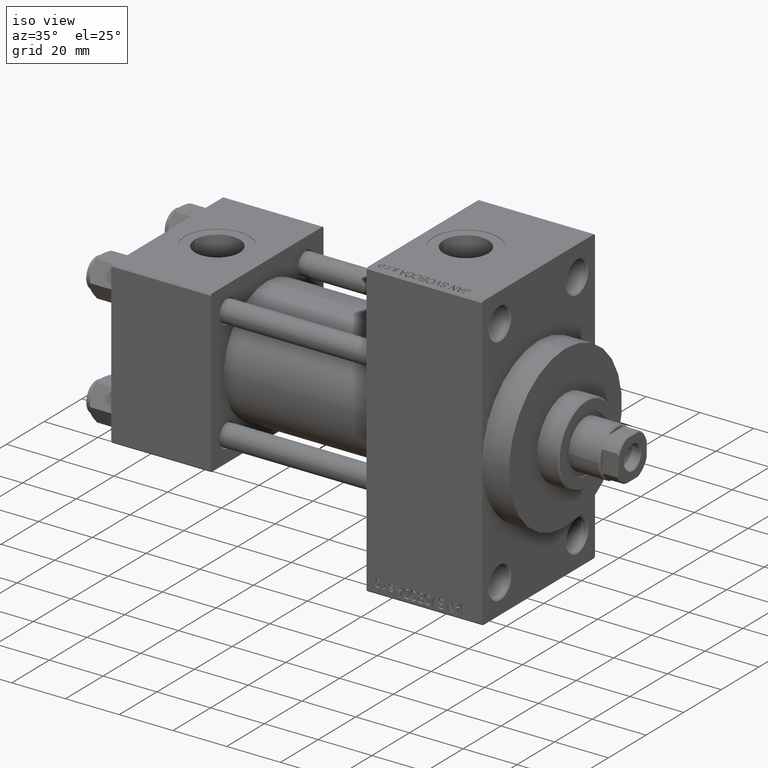
[diagram: clean part render]
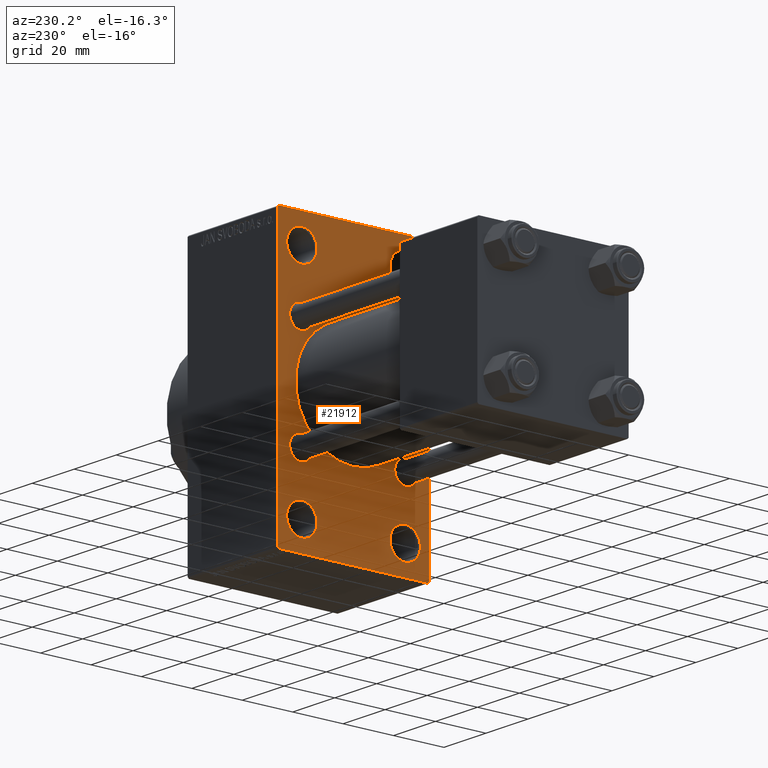
[diagram: tour spotlight — one face highlighted and labeled with its STEP entity id]
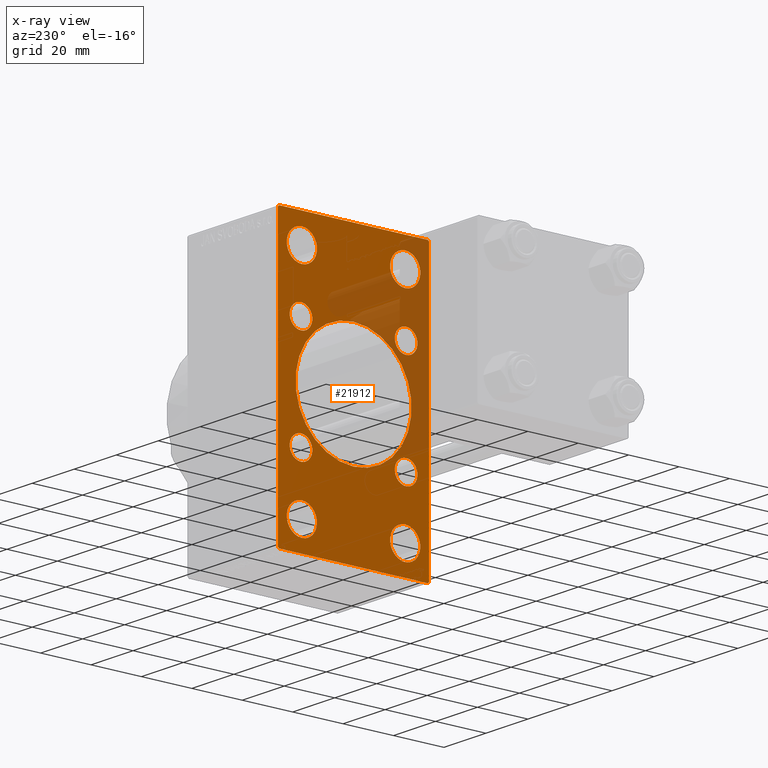
[diagram: x-ray of the same camera — body ghosted, this tour face saturated]
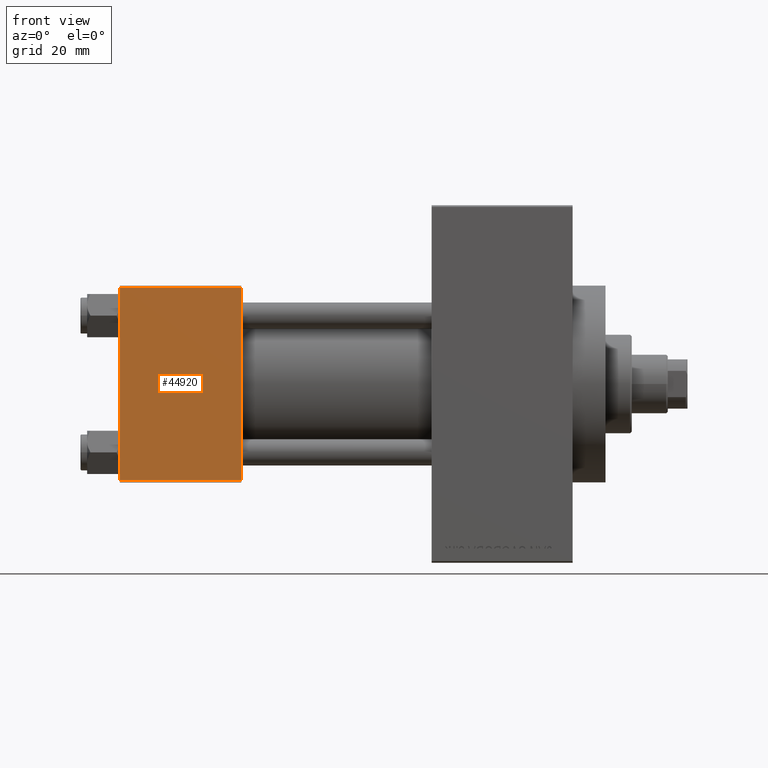
[diagram: tour spotlight — one face highlighted and labeled with its STEP entity id]
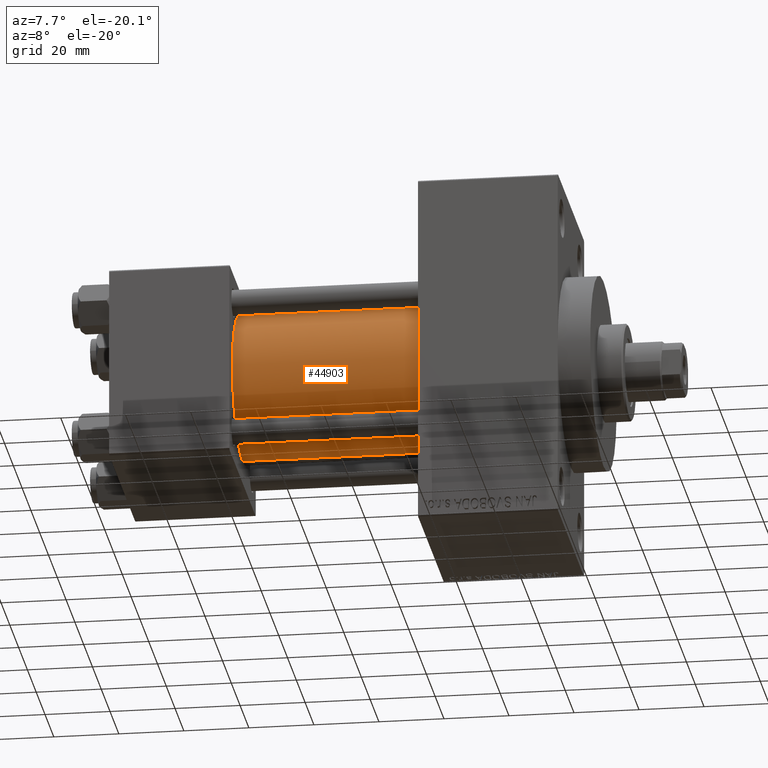
[diagram: tour spotlight — one face highlighted and labeled with its STEP entity id]
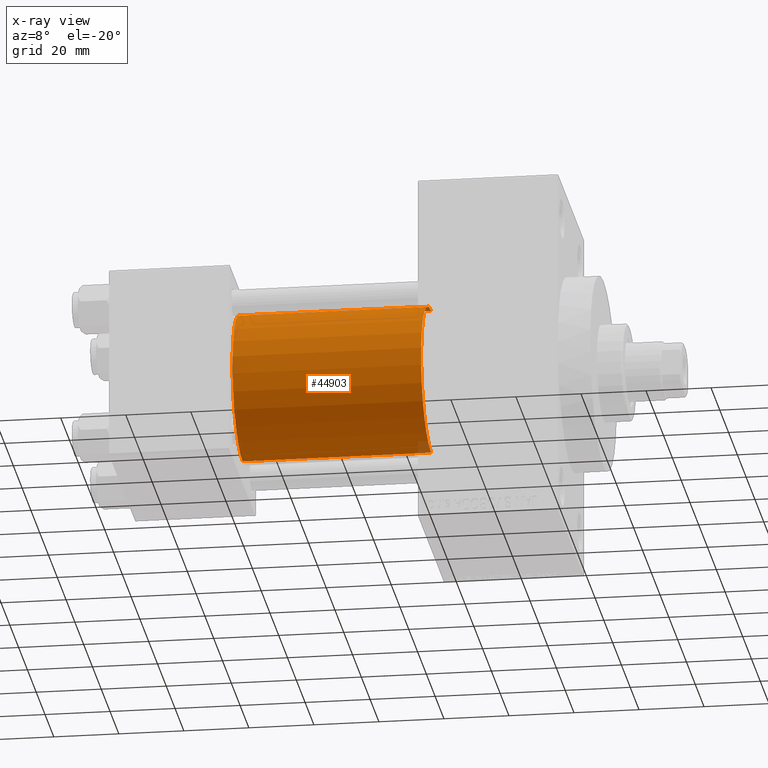
[diagram: x-ray of the same camera — body ghosted, this tour face saturated]
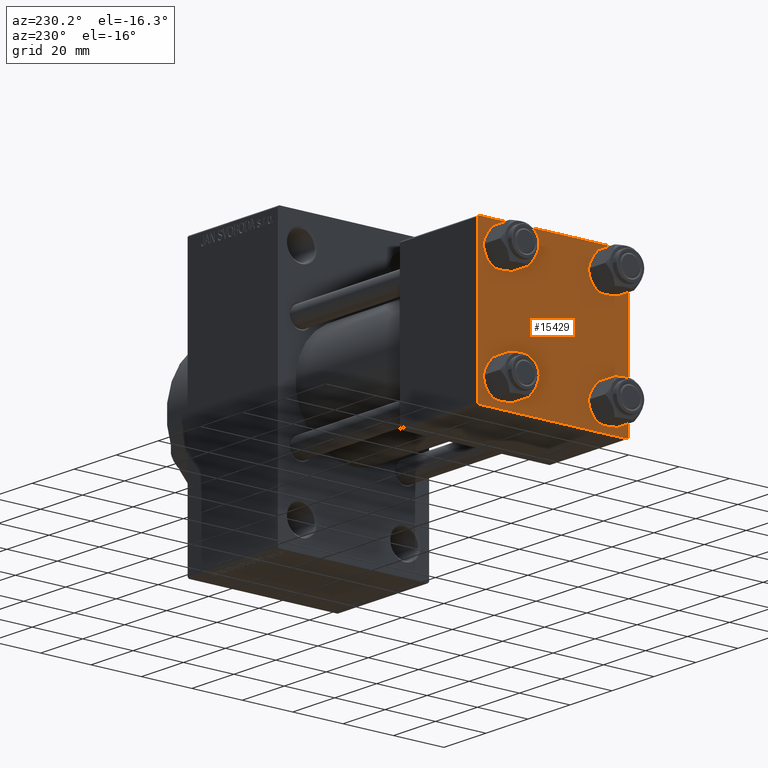
[diagram: tour spotlight — one face highlighted and labeled with its STEP entity id]
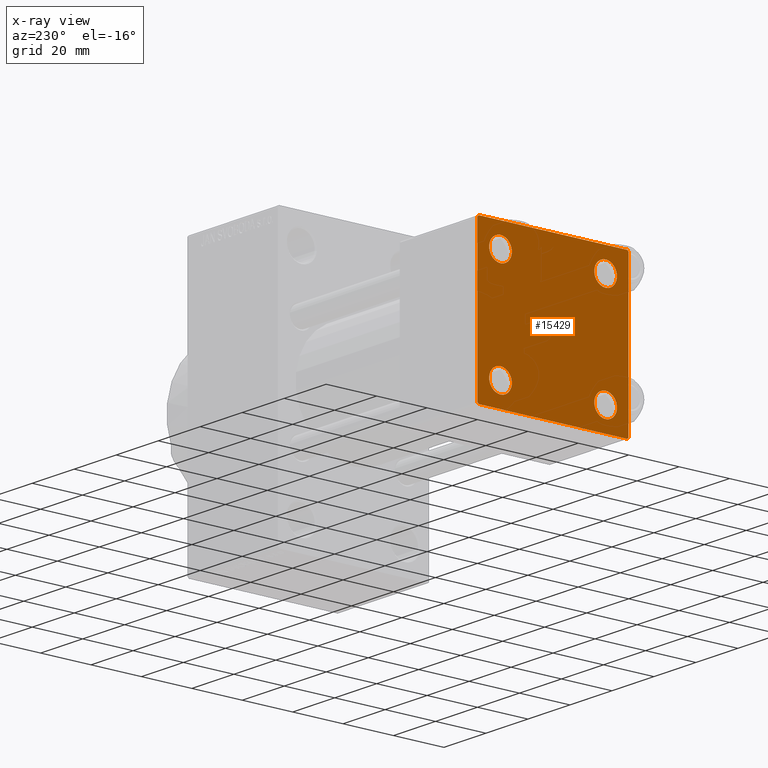
[diagram: x-ray of the same camera — body ghosted, this tour face saturated]
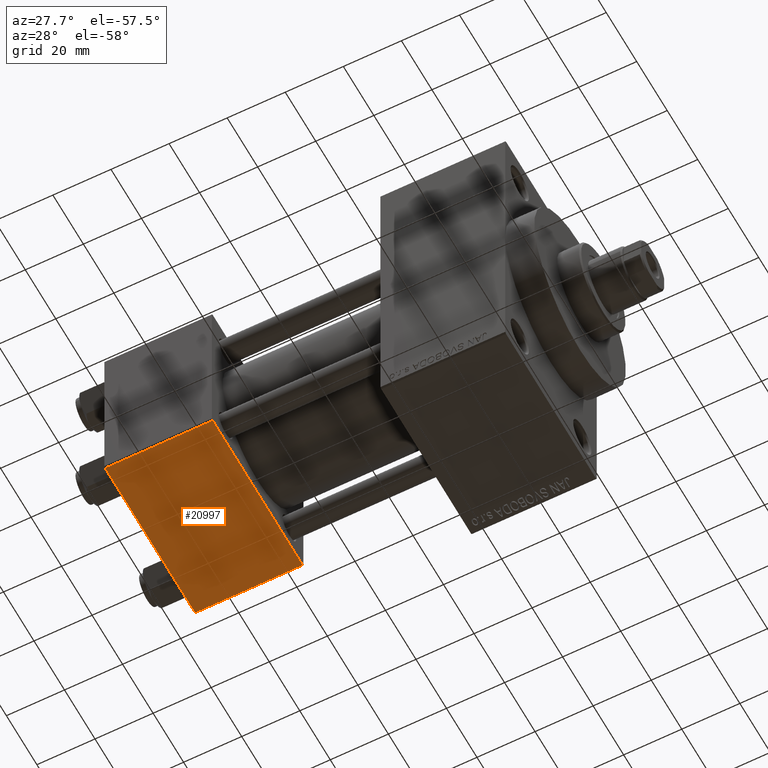
[diagram: tour spotlight — one face highlighted and labeled with its STEP entity id]
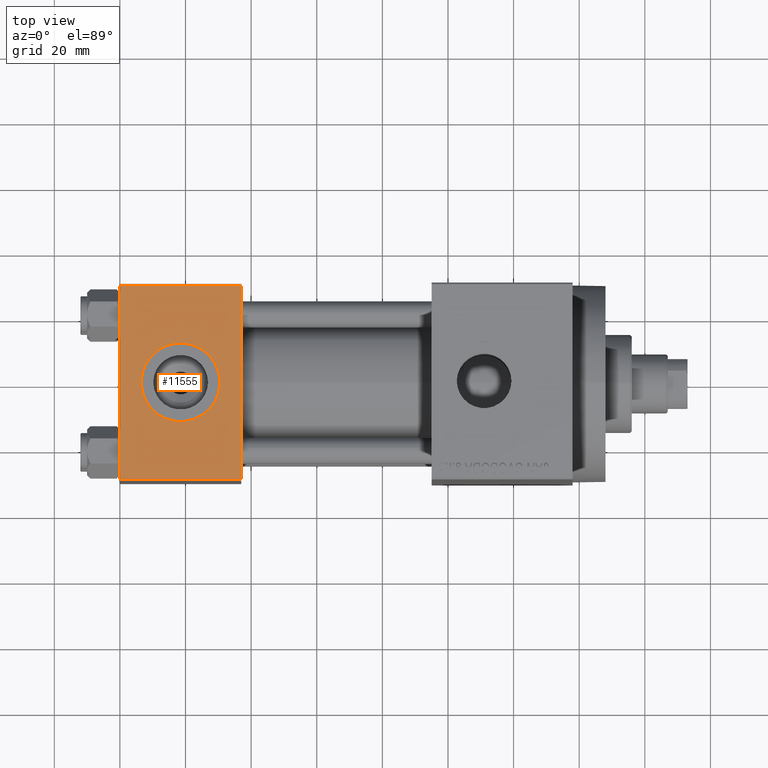
[diagram: tour spotlight — one face highlighted and labeled with its STEP entity id]
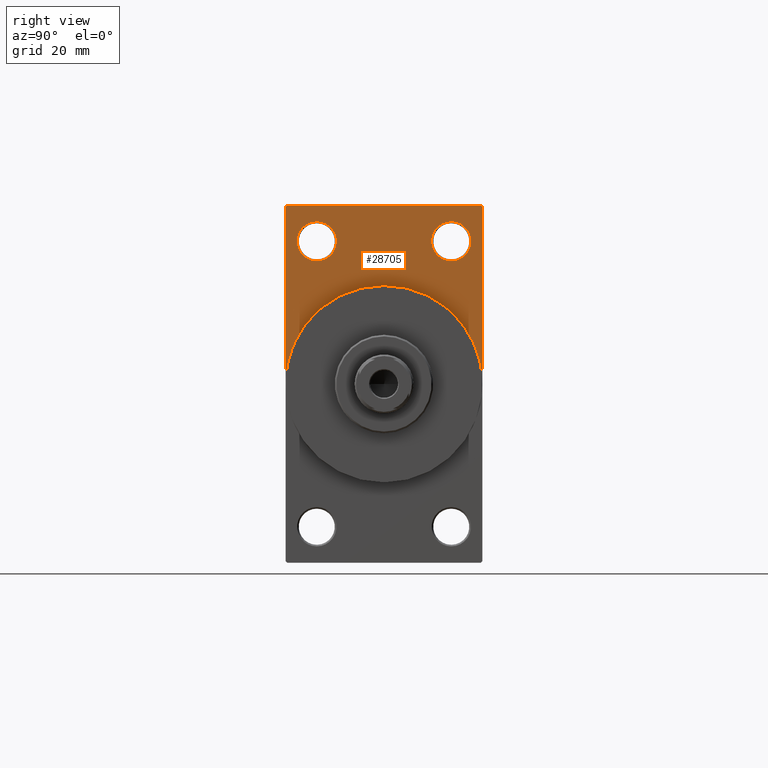
[diagram: tour spotlight — one face highlighted and labeled with its STEP entity id]
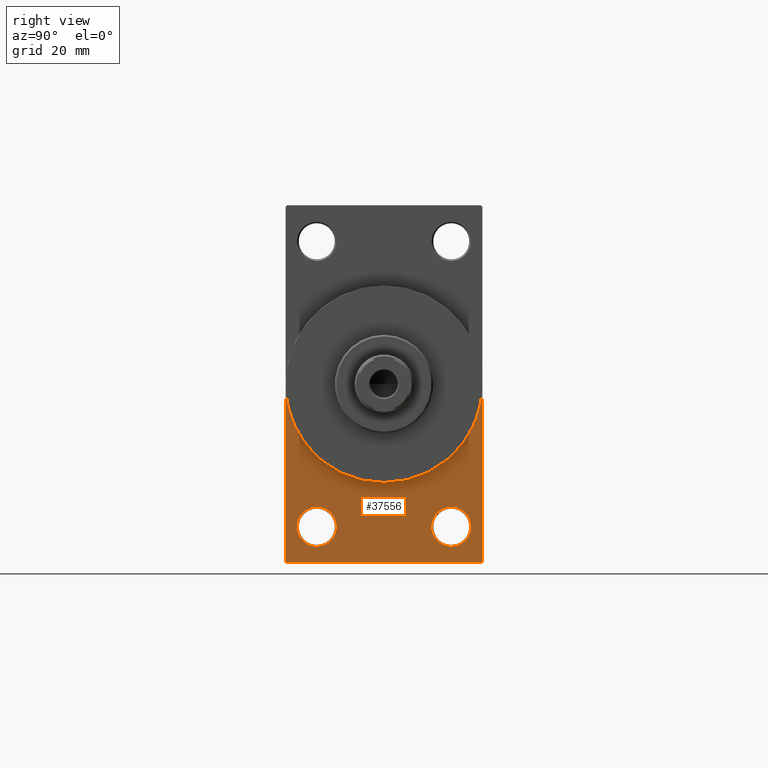
[diagram: tour spotlight — one face highlighted and labeled with its STEP entity id]
A machine part: a face-by-face anatomy tour. The part has 1104 B-rep faces; the first image is the clean iso view, then the 8 largest visible faces are spotlighted one at a time (largest first), each with its STEP entity span.

Face 1 — auxiliary view, entity #21912. An x-ray twin of the same camera follows (body ghosted, this face saturated) — the face is partly hidden behind the body. In plain terms, the highlighted planar face has unit normal (-1, 0, 0).
Definition (entity closure, byte-faithful):
#82 = EDGE_CURVE ( 'NONE', #32374, #4979, #40781, .T. ) ;
#112 = EDGE_LOOP ( 'NONE', ( #2901, #24814 ) ) ;
#114 = CARTESIAN_POINT ( 'NONE',  ( 95.00000000000000000, 20.50000000000000000, -49.49999999999989342 ) ) ;
#347 = CARTESIAN_POINT ( 'NONE',  ( 95.00000000000000000, -20.50000000000000000, -43.50000000000000000 ) ) ;
#637 = DIRECTION ( 'NONE',  ( 0.000000000000000000, 0.000000000000000000, 1.000000000000000000 ) ) ;
#911 = CARTESIAN_POINT ( 'NONE',  ( 95.00000000000000000, -20.50000000000000000, -49.49999999999989342 ) ) ;
#915 = DIRECTION ( 'NONE',  ( 1.000000000000000000, -0.000000000000000000, 0.000000000000000000 ) ) ;
#922 = AXIS2_PLACEMENT_3D ( 'NONE', #27335, #41886, #34729 ) ;
#1071 = EDGE_CURVE ( 'NONE', #17764, #27014, #26806, .T. ) ;
#1195 = CARTESIAN_POINT ( 'NONE',  ( 95.00000000000000000, 2.146024240737012665E-16, -23.00000000000000000 ) ) ;
#1275 = EDGE_CURVE ( 'NONE', #46318, #40634, #22535, .T. ) ;
#1363 = VERTEX_POINT ( 'NONE', #39897 ) ;
#1385 = EDGE_CURVE ( 'NONE', #37969, #4063, #36077, .T. ) ;
#1888 = FACE_BOUND ( 'NONE', #30644, .T. ) ;
#1913 = AXIS2_PLACEMENT_3D ( 'NONE', #10056, #6951, #42769 ) ;
#2142 = AXIS2_PLACEMENT_3D ( 'NONE', #32179, #13541, #10199 ) ;
#2331 = DIRECTION ( 'NONE',  ( 0.000000000000000000, 0.000000000000000000, 1.000000000000000000 ) ) ;
#2470 = DIRECTION ( 'NONE',  ( 0.000000000000000000, 0.000000000000000000, 1.000000000000000000 ) ) ;
#2473 = CARTESIAN_POINT ( 'NONE',  ( 95.00000000000000000, -29.49999999999997513, 54.50000000000000000 ) ) ;
#2890 = CARTESIAN_POINT ( 'NONE',  ( 95.00000000000000000, -42.00000000000051159, -41.99999999999905498 ) ) ;
#2901 = ORIENTED_EDGE ( 'NONE', *, *, #19305, .T. ) ;
#2943 = DIRECTION ( 'NONE',  ( 1.000000000000000000, -0.000000000000000000, 0.000000000000000000 ) ) ;
#3084 = VERTEX_POINT ( 'NONE', #9409 ) ;
#3657 = AXIS2_PLACEMENT_3D ( 'NONE', #36120, #46880, #9865 ) ;
#4063 = VERTEX_POINT ( 'NONE', #14879 ) ;
#4129 = EDGE_CURVE ( 'NONE', #39865, #46572, #30242, .T. ) ;
#4548 = LINE ( 'NONE', #30313, #41825 ) ;
#4679 = CIRCLE ( 'NONE', #42811, 23.00000000000000000 ) ;
#4824 = DIRECTION ( 'NONE',  ( 1.000000000000000000, -0.000000000000000000, 0.000000000000000000 ) ) ;
#4979 = VERTEX_POINT ( 'NONE', #30861 ) ;
#5008 = FACE_BOUND ( 'NONE', #112, .T. ) ;
#6521 = CARTESIAN_POINT ( 'NONE',  ( 95.00000000000000000, -20.84999999999999076, 20.85000000000000497 ) ) ;
#6951 = DIRECTION ( 'NONE',  ( 1.000000000000000000, -0.000000000000000000, 0.000000000000000000 ) ) ;
#7135 = EDGE_LOOP ( 'NONE', ( #18729, #34995 ) ) ;
#8357 = FACE_BOUND ( 'NONE', #20729, .T. ) ;
#8414 = DIRECTION ( 'NONE',  ( 0.000000000000000000, -1.000000000000000000, 1.156482317317871478E-16 ) ) ;
#8442 = EDGE_CURVE ( 'NONE', #32508, #3084, #34203, .T. ) ;
#8583 = CIRCLE ( 'NONE', #35278, 4.500000000000007105 ) ;
#8672 = ORIENTED_EDGE ( 'NONE', *, *, #34175, .T. ) ;
#9340 = CARTESIAN_POINT ( 'NONE',  ( 95.00000000000000000, -20.84999999999999076, -25.35000000000001208 ) ) ;
#9409 = CARTESIAN_POINT ( 'NONE',  ( 95.00000000000000000, -2.602085213965210642E-15, 23.00000000000000000 ) ) ;
#9434 = EDGE_CURVE ( 'NONE', #29660, #10867, #44120, .T. ) ;
#9500 = DIRECTION ( 'NONE',  ( 0.000000000000000000, 0.000000000000000000, 1.000000000000000000 ) ) ;
#9513 = AXIS2_PLACEMENT_3D ( 'NONE', #22747, #4824, #18685 ) ;
#9537 = CIRCLE ( 'NONE', #45361, 5.999999999999894307 ) ;
#9628 = EDGE_CURVE ( 'NONE', #17764, #35280, #4548, .T. ) ;
#9865 = DIRECTION ( 'NONE',  ( 0.000000000000000000, 0.000000000000000000, 1.000000000000000000 ) ) ;
#9913 = EDGE_CURVE ( 'NONE', #10202, #37969, #10227, .T. ) ;
#10056 = CARTESIAN_POINT ( 'NONE',  ( 95.00000000000000000, 20.84999999999999787, -20.85000000000000142 ) ) ;
#10107 = CARTESIAN_POINT ( 'NONE',  ( 95.00000000000000000, -2.602085213965210642E-15, 0.000000000000000000 ) ) ;
#10199 = DIRECTION ( 'NONE',  ( 0.000000000000000000, 0.000000000000000000, 1.000000000000000000 ) ) ;
#10202 = VERTEX_POINT ( 'NONE', #46724 ) ;
#10227 = LINE ( 'NONE', #28865, #18966 ) ;
#10286 = DIRECTION ( 'NONE',  ( 0.000000000000000000, -0.7071067811865352493, 0.7071067811865597852 ) ) ;
#10323 = ORIENTED_EDGE ( 'NONE', *, *, #45373, .F. ) ;
#10570 = DIRECTION ( 'NONE',  ( 1.000000000000000000, 0.000000000000000000, 0.000000000000000000 ) ) ;
#10751 = VERTEX_POINT ( 'NONE', #911 ) ;
#10867 = VERTEX_POINT ( 'NONE', #23580 ) ;
#11928 = DIRECTION ( 'NONE',  ( -0.000000000000000000, 0.000000000000000000, 1.000000000000000000 ) ) ;
#11986 = VECTOR ( 'NONE', #41493, 1000.000000000000114 ) ;
#12467 = DIRECTION ( 'NONE',  ( -0.000000000000000000, 0.7071067811865451302, 0.7071067811865500152 ) ) ;
#12880 = CIRCLE ( 'NONE', #43401, 5.999999999999894307 ) ;
#12925 = DIRECTION ( 'NONE',  ( 1.000000000000000000, -0.000000000000000000, 0.000000000000000000 ) ) ;
#12963 = EDGE_LOOP ( 'NONE', ( #38569, #27108 ) ) ;
#13325 = DIRECTION ( 'NONE',  ( 0.000000000000000000, 0.000000000000000000, 1.000000000000000000 ) ) ;
#13433 = CARTESIAN_POINT ( 'NONE',  ( 95.00000000000000000, -2.602085213965210642E-15, 0.000000000000000000 ) ) ;
#13470 = EDGE_CURVE ( 'NONE', #28778, #1363, #12880, .T. ) ;
#13541 = DIRECTION ( 'NONE',  ( 1.000000000000000000, -0.000000000000000000, 0.000000000000000000 ) ) ;
#13619 = AXIS2_PLACEMENT_3D ( 'NONE', #347, #30167, #44270 ) ;
#13636 = CARTESIAN_POINT ( 'NONE',  ( 95.00000000000000000, 20.50000000000000000, -43.50000000000000000 ) ) ;
#14542 = VECTOR ( 'NONE', #12467, 1000.000000000000114 ) ;
#14879 = CARTESIAN_POINT ( 'NONE',  ( 95.00000000000000000, -30.00000000000000000, -53.99999999999998579 ) ) ;
#15645 = VECTOR ( 'NONE', #8414, 1000.000000000000000 ) ;
#15739 = FACE_OUTER_BOUND ( 'NONE', #16078, .T. ) ;
#15812 = LINE ( 'NONE', #41142, #14542 ) ;
#15911 = ORIENTED_EDGE ( 'NONE', *, *, #9628, .T. ) ;
#16078 = EDGE_LOOP ( 'NONE', ( #36446, #29763, #10323, #38807, #40701, #15911, #46445, #8672 ) ) ;
#16411 = LINE ( 'NONE', #38396, #11986 ) ;
#17115 = CARTESIAN_POINT ( 'NONE',  ( 95.00000000000000000, 29.50000000000002132, 54.49999999999999289 ) ) ;
#17764 = VERTEX_POINT ( 'NONE', #17115 ) ;
#17780 = VERTEX_POINT ( 'NONE', #31698 ) ;
#18453 = CARTESIAN_POINT ( 'NONE',  ( 95.00000000000000000, -20.50000000000000000, 37.50000000000009948 ) ) ;
#18685 = DIRECTION ( 'NONE',  ( 0.000000000000000000, 0.000000000000000000, 1.000000000000000000 ) ) ;
#18729 = ORIENTED_EDGE ( 'NONE', *, *, #82, .T. ) ;
#18966 = VECTOR ( 'NONE', #43420, 1000.000000000000000 ) ;
#19191 = ORIENTED_EDGE ( 'NONE', *, *, #36430, .T. ) ;
#19200 = ORIENTED_EDGE ( 'NONE', *, *, #23541, .T. ) ;
#19305 = EDGE_CURVE ( 'NONE', #3084, #32508, #4679, .T. ) ;
#19395 = DIRECTION ( 'NONE',  ( 1.000000000000000000, -0.000000000000000000, 0.000000000000000000 ) ) ;
#19803 = FACE_BOUND ( 'NONE', #33989, .T. ) ;
#20622 = DIRECTION ( 'NONE',  ( 1.000000000000000000, 0.000000000000000000, 0.000000000000000000 ) ) ;
#20729 = EDGE_LOOP ( 'NONE', ( #19191, #25142 ) ) ;
#20943 = CARTESIAN_POINT ( 'NONE',  ( 95.00000000000000000, 20.50000000000000000, 43.50000000000000000 ) ) ;
#21912 = ADVANCED_FACE ( 'NONE', ( #1888, #8357, #30555, #22699, #19803, #37713, #38185, #41297, #5008, #15739 ), #45119, .T. ) ;
#22329 = AXIS2_PLACEMENT_3D ( 'NONE', #6521, #2943, #2470 ) ;
#22395 = EDGE_CURVE ( 'NONE', #25249, #45447, #42879, .T. ) ;
#22535 = CIRCLE ( 'NONE', #1913, 4.500000000000007105 ) ;
#22539 = DIRECTION ( 'NONE',  ( 0.000000000000000000, 0.000000000000000000, 1.000000000000000000 ) ) ;
#22699 = FACE_BOUND ( 'NONE', #12963, .T. ) ;
#22747 = CARTESIAN_POINT ( 'NONE',  ( 95.00000000000000000, 20.84999999999999787, 20.85000000000000142 ) ) ;
#23048 = CIRCLE ( 'NONE', #922, 5.999999999999894307 ) ;
#23141 = EDGE_CURVE ( 'NONE', #35699, #38801, #8583, .T. ) ;
#23217 = CARTESIAN_POINT ( 'NONE',  ( 95.00000000000000000, 29.99999999999999645, 54.49999999999999289 ) ) ;
#23541 = EDGE_CURVE ( 'NONE', #38801, #35699, #36036, .T. ) ;
#23580 = CARTESIAN_POINT ( 'NONE',  ( 95.00000000000000000, 20.50000000000000000, -37.50000000000009948 ) ) ;
#23710 = CARTESIAN_POINT ( 'NONE',  ( 95.00000000000000000, 20.50000000000000000, 37.50000000000009948 ) ) ;
#23724 = CARTESIAN_POINT ( 'NONE',  ( 95.00000000000000000, 20.50000000000000000, 43.50000000000000000 ) ) ;
#23847 = CARTESIAN_POINT ( 'NONE',  ( 95.00000000000000000, 20.84999999999999787, 20.85000000000000142 ) ) ;
#23925 = DIRECTION ( 'NONE',  ( 0.000000000000000000, 0.000000000000000000, 1.000000000000000000 ) ) ;
#23957 = LINE ( 'NONE', #25153, #38548 ) ;
#24239 = CIRCLE ( 'NONE', #3657, 4.500000000000007105 ) ;
#24274 = CIRCLE ( 'NONE', #2142, 5.999999999999894307 ) ;
#24309 = CIRCLE ( 'NONE', #13619, 5.999999999999894307 ) ;
#24435 = ORIENTED_EDGE ( 'NONE', *, *, #29319, .T. ) ;
#24687 = DIRECTION ( 'NONE',  ( 0.000000000000000000, 0.000000000000000000, -1.000000000000000000 ) ) ;
#24814 = ORIENTED_EDGE ( 'NONE', *, *, #8442, .T. ) ;
#25142 = ORIENTED_EDGE ( 'NONE', *, *, #41666, .T. ) ;
#25147 = EDGE_CURVE ( 'NONE', #10867, #29660, #23048, .T. ) ;
#25153 = CARTESIAN_POINT ( 'NONE',  ( 95.00000000000000000, 29.99999999999999645, 54.49999999999999289 ) ) ;
#25249 = VERTEX_POINT ( 'NONE', #34408 ) ;
#25406 = CARTESIAN_POINT ( 'NONE',  ( 95.00000000000000000, 29.99999999999999645, -53.99999999999999289 ) ) ;
#25439 = ORIENTED_EDGE ( 'NONE', *, *, #25147, .T. ) ;
#26016 = DIRECTION ( 'NONE',  ( 0.000000000000000000, 0.000000000000000000, 1.000000000000000000 ) ) ;
#26300 = AXIS2_PLACEMENT_3D ( 'NONE', #23847, #30761, #9500 ) ;
#26806 = LINE ( 'NONE', #23217, #15645 ) ;
#26902 = AXIS2_PLACEMENT_3D ( 'NONE', #34360, #34114, #13325 ) ;
#26903 = CARTESIAN_POINT ( 'NONE',  ( 95.00000000000000000, -29.50000000000000355, -54.50000000000000000 ) ) ;
#27014 = VERTEX_POINT ( 'NONE', #2473 ) ;
#27054 = VERTEX_POINT ( 'NONE', #25406 ) ;
#27108 = ORIENTED_EDGE ( 'NONE', *, *, #13470, .T. ) ;
#27335 = CARTESIAN_POINT ( 'NONE',  ( 95.00000000000000000, 20.50000000000000000, -43.50000000000000000 ) ) ;
#27595 = VERTEX_POINT ( 'NONE', #29508 ) ;
#28227 = CARTESIAN_POINT ( 'NONE',  ( 95.00000000000000000, 20.84999999999999787, 25.35000000000000853 ) ) ;
#28353 = EDGE_CURVE ( 'NONE', #4979, #32374, #30099, .T. ) ;
#28778 = VERTEX_POINT ( 'NONE', #23710 ) ;
#28865 = CARTESIAN_POINT ( 'NONE',  ( 95.00000000000000000, 29.99999999999999645, -54.49999999999999289 ) ) ;
#29319 = EDGE_CURVE ( 'NONE', #46572, #39865, #9537, .T. ) ;
#29508 = CARTESIAN_POINT ( 'NONE',  ( 95.00000000000000000, -30.00000000000000000, 53.99999999999997158 ) ) ;
#29660 = VERTEX_POINT ( 'NONE', #114 ) ;
#29763 = ORIENTED_EDGE ( 'NONE', *, *, #1385, .T. ) ;
#30099 = CIRCLE ( 'NONE', #26300, 4.500000000000007105 ) ;
#30167 = DIRECTION ( 'NONE',  ( 1.000000000000000000, -0.000000000000000000, 0.000000000000000000 ) ) ;
#30242 = CIRCLE ( 'NONE', #34058, 5.999999999999894307 ) ;
#30313 = CARTESIAN_POINT ( 'NONE',  ( 95.00000000000000000, 42.00000000000082423, 41.99999999999849365 ) ) ;
#30384 = CARTESIAN_POINT ( 'NONE',  ( 95.00000000000000000, -20.50000000000000000, 43.50000000000000000 ) ) ;
#30555 = FACE_BOUND ( 'NONE', #40300, .T. ) ;
#30644 = EDGE_LOOP ( 'NONE', ( #24435, #44672 ) ) ;
#30656 = EDGE_CURVE ( 'NONE', #35280, #27054, #23957, .T. ) ;
#30688 = ORIENTED_EDGE ( 'NONE', *, *, #23141, .T. ) ;
#30761 = DIRECTION ( 'NONE',  ( 1.000000000000000000, -0.000000000000000000, 0.000000000000000000 ) ) ;
#30861 = CARTESIAN_POINT ( 'NONE',  ( 95.00000000000000000, 20.84999999999999787, 16.34999999999999432 ) ) ;
#31064 = DIRECTION ( 'NONE',  ( 0.000000000000000000, 0.000000000000000000, 1.000000000000000000 ) ) ;
#31360 = DIRECTION ( 'NONE',  ( 1.000000000000000000, -0.000000000000000000, 0.000000000000000000 ) ) ;
#31698 = CARTESIAN_POINT ( 'NONE',  ( 95.00000000000000000, -20.50000000000000000, -37.50000000000009948 ) ) ;
#32179 = CARTESIAN_POINT ( 'NONE',  ( 95.00000000000000000, -20.50000000000000000, -43.50000000000000000 ) ) ;
#32374 = VERTEX_POINT ( 'NONE', #28227 ) ;
#32508 = VERTEX_POINT ( 'NONE', #1195 ) ;
#33121 = CARTESIAN_POINT ( 'NONE',  ( 95.00000000000000000, -20.50000000000000000, 43.50000000000000000 ) ) ;
#33641 = CARTESIAN_POINT ( 'NONE',  ( 95.00000000000000000, 20.84999999999999787, -20.85000000000000142 ) ) ;
#33989 = EDGE_LOOP ( 'NONE', ( #46014, #34628 ) ) ;
#34058 = AXIS2_PLACEMENT_3D ( 'NONE', #30384, #19395, #22539 ) ;
#34114 = DIRECTION ( 'NONE',  ( 1.000000000000000000, -0.000000000000000000, 0.000000000000000000 ) ) ;
#34130 = DIRECTION ( 'NONE',  ( 0.000000000000000000, 0.7071067811865279218, -0.7071067811865671127 ) ) ;
#34175 = EDGE_CURVE ( 'NONE', #27054, #10202, #16411, .T. ) ;
#34203 = CIRCLE ( 'NONE', #44863, 23.00000000000000000 ) ;
#34360 = CARTESIAN_POINT ( 'NONE',  ( 95.00000000000000000, -20.84999999999999076, -20.85000000000000497 ) ) ;
#34375 = DIRECTION ( 'NONE',  ( -1.000000000000000000, 0.000000000000000000, -0.000000000000000000 ) ) ;
#34385 = AXIS2_PLACEMENT_3D ( 'NONE', #33641, #915, #26016 ) ;
#34408 = CARTESIAN_POINT ( 'NONE',  ( 95.00000000000000000, -20.84999999999999076, 25.35000000000001208 ) ) ;
#34499 = CARTESIAN_POINT ( 'NONE',  ( 95.00000000000000000, -20.84999999999999076, 16.34999999999999787 ) ) ;
#34569 = DIRECTION ( 'NONE',  ( 1.000000000000000000, -0.000000000000000000, 0.000000000000000000 ) ) ;
#34628 = ORIENTED_EDGE ( 'NONE', *, *, #35568, .T. ) ;
#34729 = DIRECTION ( 'NONE',  ( 0.000000000000000000, 0.000000000000000000, 1.000000000000000000 ) ) ;
#34932 = DIRECTION ( 'NONE',  ( 0.000000000000000000, 0.000000000000000000, 1.000000000000000000 ) ) ;
#34995 = ORIENTED_EDGE ( 'NONE', *, *, #28353, .T. ) ;
#35278 = AXIS2_PLACEMENT_3D ( 'NONE', #45388, #45633, #31064 ) ;
#35280 = VERTEX_POINT ( 'NONE', #38578 ) ;
#35568 = EDGE_CURVE ( 'NONE', #45447, #25249, #24239, .T. ) ;
#35699 = VERTEX_POINT ( 'NONE', #9340 ) ;
#35796 = CARTESIAN_POINT ( 'NONE',  ( 95.00000000000000000, 20.84999999999999787, -25.35000000000000853 ) ) ;
#36036 = CIRCLE ( 'NONE', #26902, 4.500000000000007105 ) ;
#36077 = LINE ( 'NONE', #2890, #45414 ) ;
#36120 = CARTESIAN_POINT ( 'NONE',  ( 95.00000000000000000, -20.84999999999999076, 20.85000000000000497 ) ) ;
#36430 = EDGE_CURVE ( 'NONE', #17780, #10751, #24274, .T. ) ;
#36446 = ORIENTED_EDGE ( 'NONE', *, *, #9913, .T. ) ;
#37713 = FACE_BOUND ( 'NONE', #7135, .T. ) ;
#37969 = VERTEX_POINT ( 'NONE', #26903 ) ;
#38185 = FACE_BOUND ( 'NONE', #45496, .T. ) ;
#38195 = CIRCLE ( 'NONE', #34385, 4.500000000000007105 ) ;
#38396 = CARTESIAN_POINT ( 'NONE',  ( 95.00000000000000000, 41.99999999999998579, -41.99999999999998579 ) ) ;
#38548 = VECTOR ( 'NONE', #43745, 1000.000000000000000 ) ;
#38569 = ORIENTED_EDGE ( 'NONE', *, *, #43578, .T. ) ;
#38578 = CARTESIAN_POINT ( 'NONE',  ( 95.00000000000000000, 29.99999999999999645, 53.99999999999999289 ) ) ;
#38689 = AXIS2_PLACEMENT_3D ( 'NONE', #13636, #12925, #23925 ) ;
#38801 = VERTEX_POINT ( 'NONE', #40338 ) ;
#38807 = ORIENTED_EDGE ( 'NONE', *, *, #46764, .T. ) ;
#39786 = DIRECTION ( 'NONE',  ( 0.000000000000000000, 0.000000000000000000, -1.000000000000000000 ) ) ;
#39865 = VERTEX_POINT ( 'NONE', #18453 ) ;
#39897 = CARTESIAN_POINT ( 'NONE',  ( 95.00000000000000000, 20.50000000000000000, 49.49999999999989342 ) ) ;
#40300 = EDGE_LOOP ( 'NONE', ( #25439, #41851 ) ) ;
#40338 = CARTESIAN_POINT ( 'NONE',  ( 95.00000000000000000, -20.84999999999999076, -16.34999999999999787 ) ) ;
#40404 = AXIS2_PLACEMENT_3D ( 'NONE', #23724, #31360, #34932 ) ;
#40634 = VERTEX_POINT ( 'NONE', #44759 ) ;
#40701 = ORIENTED_EDGE ( 'NONE', *, *, #1071, .F. ) ;
#40747 = DIRECTION ( 'NONE',  ( 1.000000000000000000, -0.000000000000000000, 0.000000000000000000 ) ) ;
#40781 = CIRCLE ( 'NONE', #9513, 4.500000000000007105 ) ;
#41142 = CARTESIAN_POINT ( 'NONE',  ( 95.00000000000000000, -42.00000000000008527, 41.99999999999979394 ) ) ;
#41197 = EDGE_LOOP ( 'NONE', ( #19200, #30688 ) ) ;
#41297 = FACE_BOUND ( 'NONE', #41197, .T. ) ;
#41493 = DIRECTION ( 'NONE',  ( -0.000000000000000000, -0.7071067811865474617, -0.7071067811865474617 ) ) ;
#41666 = EDGE_CURVE ( 'NONE', #10751, #17780, #24309, .T. ) ;
#41825 = VECTOR ( 'NONE', #34130, 1000.000000000000000 ) ;
#41851 = ORIENTED_EDGE ( 'NONE', *, *, #9434, .T. ) ;
#41886 = DIRECTION ( 'NONE',  ( 1.000000000000000000, -0.000000000000000000, 0.000000000000000000 ) ) ;
#42769 = DIRECTION ( 'NONE',  ( 0.000000000000000000, 0.000000000000000000, 1.000000000000000000 ) ) ;
#42811 = AXIS2_PLACEMENT_3D ( 'NONE', #13433, #10570, #46873 ) ;
#42879 = CIRCLE ( 'NONE', #22329, 4.500000000000007105 ) ;
#43401 = AXIS2_PLACEMENT_3D ( 'NONE', #20943, #34569, #2331 ) ;
#43420 = DIRECTION ( 'NONE',  ( 0.000000000000000000, -1.000000000000000000, -1.156482317317871478E-16 ) ) ;
#43451 = ORIENTED_EDGE ( 'NONE', *, *, #46488, .T. ) ;
#43490 = VECTOR ( 'NONE', #39786, 1000.000000000000000 ) ;
#43578 = EDGE_CURVE ( 'NONE', #1363, #28778, #47251, .T. ) ;
#43745 = DIRECTION ( 'NONE',  ( 0.000000000000000000, 0.000000000000000000, -1.000000000000000000 ) ) ;
#44073 = CARTESIAN_POINT ( 'NONE',  ( 95.00000000000000000, -30.00000000000000000, 54.50000000000000000 ) ) ;
#44120 = CIRCLE ( 'NONE', #38689, 5.999999999999894307 ) ;
#44270 = DIRECTION ( 'NONE',  ( 0.000000000000000000, 0.000000000000000000, 1.000000000000000000 ) ) ;
#44548 = LINE ( 'NONE', #44073, #43490 ) ;
#44653 = CARTESIAN_POINT ( 'NONE',  ( 95.00000000000000000, 0.000000000000000000, 0.000000000000000000 ) ) ;
#44672 = ORIENTED_EDGE ( 'NONE', *, *, #4129, .T. ) ;
#44759 = CARTESIAN_POINT ( 'NONE',  ( 95.00000000000000000, 20.84999999999999787, -16.34999999999999432 ) ) ;
#44863 = AXIS2_PLACEMENT_3D ( 'NONE', #10107, #20622, #24687 ) ;
#45119 = PLANE ( 'NONE',  #46713 ) ;
#45267 = ORIENTED_EDGE ( 'NONE', *, *, #1275, .T. ) ;
#45361 = AXIS2_PLACEMENT_3D ( 'NONE', #33121, #40747, #637 ) ;
#45373 = EDGE_CURVE ( 'NONE', #27595, #4063, #44548, .T. ) ;
#45388 = CARTESIAN_POINT ( 'NONE',  ( 95.00000000000000000, -20.84999999999999076, -20.85000000000000497 ) ) ;
#45414 = VECTOR ( 'NONE', #10286, 1000.000000000000000 ) ;
#45447 = VERTEX_POINT ( 'NONE', #34499 ) ;
#45496 = EDGE_LOOP ( 'NONE', ( #43451, #45267 ) ) ;
#45538 = CARTESIAN_POINT ( 'NONE',  ( 95.00000000000000000, -20.50000000000000000, 49.49999999999989342 ) ) ;
#45633 = DIRECTION ( 'NONE',  ( 1.000000000000000000, -0.000000000000000000, 0.000000000000000000 ) ) ;
#46014 = ORIENTED_EDGE ( 'NONE', *, *, #22395, .T. ) ;
#46318 = VERTEX_POINT ( 'NONE', #35796 ) ;
#46445 = ORIENTED_EDGE ( 'NONE', *, *, #30656, .T. ) ;
#46488 = EDGE_CURVE ( 'NONE', #40634, #46318, #38195, .T. ) ;
#46572 = VERTEX_POINT ( 'NONE', #45538 ) ;
#46713 = AXIS2_PLACEMENT_3D ( 'NONE', #44653, #34375, #11928 ) ;
#46724 = CARTESIAN_POINT ( 'NONE',  ( 95.00000000000000000, 29.49999999999999645, -54.49999999999999289 ) ) ;
#46764 = EDGE_CURVE ( 'NONE', #27595, #27014, #15812, .T. ) ;
#46873 = DIRECTION ( 'NONE',  ( 0.000000000000000000, 0.000000000000000000, -1.000000000000000000 ) ) ;
#46880 = DIRECTION ( 'NONE',  ( 1.000000000000000000, -0.000000000000000000, 0.000000000000000000 ) ) ;
#47251 = CIRCLE ( 'NONE', #40404, 5.999999999999894307 ) ;

Face 2 — front view, entity #44920. In plain terms, the highlighted planar face has unit normal (0, 1, 0).
Definition (entity closure, byte-faithful):
#1092 = LINE ( 'NONE', #40749, #7558 ) ;
#2371 = ORIENTED_EDGE ( 'NONE', *, *, #16849, .T. ) ;
#2572 = CARTESIAN_POINT ( 'NONE',  ( 0.000000000000000000, -30.00000000000000000, -29.50000000000001776 ) ) ;
#3739 = DIRECTION ( 'NONE',  ( 0.000000000000000000, 0.000000000000000000, -1.000000000000000000 ) ) ;
#5543 = DIRECTION ( 'NONE',  ( -0.000000000000000000, 1.000000000000000000, 0.000000000000000000 ) ) ;
#6855 = AXIS2_PLACEMENT_3D ( 'NONE', #39187, #5543, #9356 ) ;
#7558 = VECTOR ( 'NONE', #37161, 1000.000000000000000 ) ;
#9356 = DIRECTION ( 'NONE',  ( 0.000000000000000000, -0.000000000000000000, 1.000000000000000000 ) ) ;
#9708 = LINE ( 'NONE', #20930, #14516 ) ;
#9729 = VERTEX_POINT ( 'NONE', #20751 ) ;
#11910 = EDGE_CURVE ( 'NONE', #36710, #43384, #24415, .T. ) ;
#13702 = EDGE_CURVE ( 'NONE', #43384, #9729, #1092, .T. ) ;
#14516 = VECTOR ( 'NONE', #45532, 1000.000000000000000 ) ;
#15407 = CARTESIAN_POINT ( 'NONE',  ( 37.00000000000000000, -30.00000000000000000, 29.99999999999999289 ) ) ;
#15884 = CARTESIAN_POINT ( 'NONE',  ( 0.000000000000000000, -30.00000000000000000, 29.49999999999999289 ) ) ;
#16743 = PLANE ( 'NONE',  #6855 ) ;
#16849 = EDGE_CURVE ( 'NONE', #47086, #36710, #9708, .T. ) ;
#20751 = CARTESIAN_POINT ( 'NONE',  ( 37.00000000000000000, -30.00000000000000000, -29.50000000000001776 ) ) ;
#20930 = CARTESIAN_POINT ( 'NONE',  ( 37.00000000000000000, -30.00000000000000000, 29.49999999999999289 ) ) ;
#21049 = DIRECTION ( 'NONE',  ( 0.000000000000000000, 0.000000000000000000, -1.000000000000000000 ) ) ;
#24415 = LINE ( 'NONE', #35149, #34153 ) ;
#24639 = FACE_OUTER_BOUND ( 'NONE', #30272, .T. ) ;
#30272 = EDGE_LOOP ( 'NONE', ( #42925, #38399, #41846, #2371 ) ) ;
#34153 = VECTOR ( 'NONE', #21049, 1000.000000000000000 ) ;
#35149 = CARTESIAN_POINT ( 'NONE',  ( 0.000000000000000000, -30.00000000000000000, 29.99999999999999289 ) ) ;
#36710 = VERTEX_POINT ( 'NONE', #15884 ) ;
#37161 = DIRECTION ( 'NONE',  ( 1.000000000000000000, 0.000000000000000000, 0.000000000000000000 ) ) ;
#38399 = ORIENTED_EDGE ( 'NONE', *, *, #13702, .T. ) ;
#38914 = CARTESIAN_POINT ( 'NONE',  ( 37.00000000000000000, -30.00000000000000000, 29.49999999999999289 ) ) ;
#39073 = LINE ( 'NONE', #15407, #42732 ) ;
#39187 = CARTESIAN_POINT ( 'NONE',  ( 37.00000000000000000, -30.00000000000000000, 29.99999999999999289 ) ) ;
#40749 = CARTESIAN_POINT ( 'NONE',  ( 37.00000000000000000, -30.00000000000000000, -29.50000000000001776 ) ) ;
#41846 = ORIENTED_EDGE ( 'NONE', *, *, #45339, .F. ) ;
#42732 = VECTOR ( 'NONE', #3739, 1000.000000000000000 ) ;
#42925 = ORIENTED_EDGE ( 'NONE', *, *, #11910, .T. ) ;
#43384 = VERTEX_POINT ( 'NONE', #2572 ) ;
#44920 = ADVANCED_FACE ( 'NONE', ( #24639 ), #16743, .F. ) ;
#45339 = EDGE_CURVE ( 'NONE', #47086, #9729, #39073, .T. ) ;
#45532 = DIRECTION ( 'NONE',  ( -1.000000000000000000, 0.000000000000000000, 0.000000000000000000 ) ) ;
#47086 = VERTEX_POINT ( 'NONE', #38914 ) ;

Face 3 — auxiliary view, entity #44903. An x-ray twin of the same camera follows (body ghosted, this face saturated) — the face is partly hidden behind the body. In plain terms, the highlighted cylindrical surface (partial cylindrical patch) has radius 23 mm, axis along (-1, -0, -0).
Definition (entity closure, byte-faithful):
#378 = DIRECTION ( 'NONE',  ( -1.000000000000000000, -0.000000000000000000, -0.000000000000000000 ) ) ;
#1195 = CARTESIAN_POINT ( 'NONE',  ( 95.00000000000000000, 2.146024240737012665E-16, -23.00000000000000000 ) ) ;
#3084 = VERTEX_POINT ( 'NONE', #9409 ) ;
#3501 = LINE ( 'NONE', #3988, #37231 ) ;
#3988 = CARTESIAN_POINT ( 'NONE',  ( 95.00000000000000000, -2.602085213965210642E-15, 23.00000000000000000 ) ) ;
#4679 = CIRCLE ( 'NONE', #42811, 23.00000000000000000 ) ;
#6013 = FACE_OUTER_BOUND ( 'NONE', #38209, .T. ) ;
#6247 = CARTESIAN_POINT ( 'NONE',  ( 95.00000000000000000, -2.602085213965210642E-15, 0.000000000000000000 ) ) ;
#8043 = EDGE_CURVE ( 'NONE', #3084, #47113, #3501, .T. ) ;
#8981 = VECTOR ( 'NONE', #378, 1000.000000000000000 ) ;
#9409 = CARTESIAN_POINT ( 'NONE',  ( 95.00000000000000000, -2.602085213965210642E-15, 23.00000000000000000 ) ) ;
#9685 = ORIENTED_EDGE ( 'NONE', *, *, #40600, .F. ) ;
#10570 = DIRECTION ( 'NONE',  ( 1.000000000000000000, 0.000000000000000000, 0.000000000000000000 ) ) ;
#11121 = LINE ( 'NONE', #25702, #8981 ) ;
#13189 = VERTEX_POINT ( 'NONE', #31753 ) ;
#13433 = CARTESIAN_POINT ( 'NONE',  ( 95.00000000000000000, -2.602085213965210642E-15, 0.000000000000000000 ) ) ;
#13935 = DIRECTION ( 'NONE',  ( 1.000000000000000000, -0.000000000000000000, 0.000000000000000000 ) ) ;
#14468 = DIRECTION ( 'NONE',  ( -1.000000000000000000, -0.000000000000000000, -0.000000000000000000 ) ) ;
#14932 = EDGE_CURVE ( 'NONE', #47113, #13189, #44969, .T. ) ;
#16405 = ORIENTED_EDGE ( 'NONE', *, *, #8043, .T. ) ;
#19305 = EDGE_CURVE ( 'NONE', #3084, #32508, #4679, .T. ) ;
#20328 = CYLINDRICAL_SURFACE ( 'NONE', #27438, 23.00000000000000000 ) ;
#22487 = ORIENTED_EDGE ( 'NONE', *, *, #14932, .T. ) ;
#24363 = CARTESIAN_POINT ( 'NONE',  ( 37.00000000000000000, -2.602085213965210642E-15, 23.00000000000000000 ) ) ;
#25702 = CARTESIAN_POINT ( 'NONE',  ( 95.00000000000000000, 2.146024240737012665E-16, -23.00000000000000000 ) ) ;
#27438 = AXIS2_PLACEMENT_3D ( 'NONE', #6247, #38719, #27515 ) ;
#27515 = DIRECTION ( 'NONE',  ( 0.000000000000000000, 0.000000000000000000, 1.000000000000000000 ) ) ;
#28033 = DIRECTION ( 'NONE',  ( 0.000000000000000000, 0.000000000000000000, 1.000000000000000000 ) ) ;
#31142 = CARTESIAN_POINT ( 'NONE',  ( 37.00000000000000000, -2.602085213965210642E-15, 0.000000000000000000 ) ) ;
#31753 = CARTESIAN_POINT ( 'NONE',  ( 37.00000000000000000, 2.146024240737012665E-16, -23.00000000000000000 ) ) ;
#32508 = VERTEX_POINT ( 'NONE', #1195 ) ;
#37231 = VECTOR ( 'NONE', #14468, 1000.000000000000000 ) ;
#38209 = EDGE_LOOP ( 'NONE', ( #9685, #44889, #16405, #22487 ) ) ;
#38719 = DIRECTION ( 'NONE',  ( -1.000000000000000000, -0.000000000000000000, -0.000000000000000000 ) ) ;
#40600 = EDGE_CURVE ( 'NONE', #32508, #13189, #11121, .T. ) ;
#41145 = AXIS2_PLACEMENT_3D ( 'NONE', #31142, #13935, #28033 ) ;
#42811 = AXIS2_PLACEMENT_3D ( 'NONE', #13433, #10570, #46873 ) ;
#44889 = ORIENTED_EDGE ( 'NONE', *, *, #19305, .F. ) ;
#44903 = ADVANCED_FACE ( 'NONE', ( #6013 ), #20328, .T. ) ;
#44969 = CIRCLE ( 'NONE', #41145, 23.00000000000000000 ) ;
#46873 = DIRECTION ( 'NONE',  ( 0.000000000000000000, 0.000000000000000000, -1.000000000000000000 ) ) ;
#47113 = VERTEX_POINT ( 'NONE', #24363 ) ;

Face 4 — auxiliary view, entity #15429. An x-ray twin of the same camera follows (body ghosted, this face saturated) — the face is partly hidden behind the body. In plain terms, the highlighted planar face has unit normal (-1, 0, 0).
Definition (entity closure, byte-faithful):
#418 = EDGE_LOOP ( 'NONE', ( #7922, #25854 ) ) ;
#540 = CARTESIAN_POINT ( 'NONE',  ( 0.000000000000000000, -20.84999999999999076, 16.34999999999998721 ) ) ;
#557 = CARTESIAN_POINT ( 'NONE',  ( 0.000000000000000000, -20.84999999999999076, -20.85000000000000497 ) ) ;
#604 = VERTEX_POINT ( 'NONE', #37372 ) ;
#663 = CIRCLE ( 'NONE', #41080, 4.500000000000017764 ) ;
#688 = AXIS2_PLACEMENT_3D ( 'NONE', #3945, #33541, #33069 ) ;
#2572 = CARTESIAN_POINT ( 'NONE',  ( 0.000000000000000000, -30.00000000000000000, -29.50000000000001776 ) ) ;
#2859 = CARTESIAN_POINT ( 'NONE',  ( 0.000000000000000000, 29.99999999999999289, 30.00000000000000000 ) ) ;
#3945 = CARTESIAN_POINT ( 'NONE',  ( 0.000000000000000000, 20.84999999999999787, 20.85000000000000142 ) ) ;
#4216 = EDGE_CURVE ( 'NONE', #23011, #17117, #14969, .T. ) ;
#4534 = VECTOR ( 'NONE', #34176, 1000.000000000000114 ) ;
#4950 = EDGE_LOOP ( 'NONE', ( #21907, #12109 ) ) ;
#5167 = EDGE_CURVE ( 'NONE', #30173, #36660, #40952, .T. ) ;
#7046 = VERTEX_POINT ( 'NONE', #46773 ) ;
#7451 = CARTESIAN_POINT ( 'NONE',  ( 0.000000000000000000, 29.99999999999999289, -30.00000000000000000 ) ) ;
#7589 = AXIS2_PLACEMENT_3D ( 'NONE', #22067, #11067, #14162 ) ;
#7714 = DIRECTION ( 'NONE',  ( 0.000000000000000000, 0.000000000000000000, 1.000000000000000000 ) ) ;
#7922 = ORIENTED_EDGE ( 'NONE', *, *, #14994, .T. ) ;
#8210 = VERTEX_POINT ( 'NONE', #41648 ) ;
#8420 = CARTESIAN_POINT ( 'NONE',  ( 0.000000000000000000, -20.84999999999999076, 20.85000000000000497 ) ) ;
#8665 = VERTEX_POINT ( 'NONE', #32262 ) ;
#8885 = DIRECTION ( 'NONE',  ( 0.000000000000000000, 0.000000000000000000, 1.000000000000000000 ) ) ;
#9149 = CARTESIAN_POINT ( 'NONE',  ( 0.000000000000000000, 29.49999999999999289, 30.00000000000000000 ) ) ;
#9226 = EDGE_CURVE ( 'NONE', #15459, #43862, #663, .T. ) ;
#9872 = VECTOR ( 'NONE', #46569, 1000.000000000000000 ) ;
#10125 = DIRECTION ( 'NONE',  ( 0.000000000000000000, -0.7071067811865474617, 0.7071067811865474617 ) ) ;
#10666 = ORIENTED_EDGE ( 'NONE', *, *, #38775, .T. ) ;
#10768 = PLANE ( 'NONE',  #26675 ) ;
#10857 = EDGE_LOOP ( 'NONE', ( #26026, #25533, #27688, #32705, #26168, #10666, #23856, #22553 ) ) ;
#11067 = DIRECTION ( 'NONE',  ( 1.000000000000000000, -0.000000000000000000, 0.000000000000000000 ) ) ;
#11666 = ORIENTED_EDGE ( 'NONE', *, *, #9226, .T. ) ;
#11910 = EDGE_CURVE ( 'NONE', #36710, #43384, #24415, .T. ) ;
#11912 = CIRCLE ( 'NONE', #37858, 4.500000000000017764 ) ;
#12109 = ORIENTED_EDGE ( 'NONE', *, *, #19829, .T. ) ;
#12198 = CARTESIAN_POINT ( 'NONE',  ( 0.000000000000000000, 20.84999999999999787, 25.35000000000001918 ) ) ;
#12409 = DIRECTION ( 'NONE',  ( 0.000000000000000000, 0.000000000000000000, 1.000000000000000000 ) ) ;
#12750 = CARTESIAN_POINT ( 'NONE',  ( 0.000000000000000000, -29.75000000000001066, -29.75000000000001066 ) ) ;
#12762 = ORIENTED_EDGE ( 'NONE', *, *, #23941, .T. ) ;
#12991 = CARTESIAN_POINT ( 'NONE',  ( 0.000000000000000000, 29.74999999999999645, 29.74999999999999645 ) ) ;
#13253 = EDGE_LOOP ( 'NONE', ( #29172, #17073 ) ) ;
#13456 = VECTOR ( 'NONE', #10125, 1000.000000000000114 ) ;
#13462 = LINE ( 'NONE', #12991, #28715 ) ;
#13985 = DIRECTION ( 'NONE',  ( 0.000000000000000000, 0.000000000000000000, -1.000000000000000000 ) ) ;
#14162 = DIRECTION ( 'NONE',  ( 0.000000000000000000, 0.000000000000000000, 1.000000000000000000 ) ) ;
#14618 = EDGE_CURVE ( 'NONE', #7046, #18050, #38830, .T. ) ;
#14806 = FACE_OUTER_BOUND ( 'NONE', #10857, .T. ) ;
#14969 = CIRCLE ( 'NONE', #36354, 4.500000000000017764 ) ;
#14994 = EDGE_CURVE ( 'NONE', #17117, #23011, #24385, .T. ) ;
#15429 = ADVANCED_FACE ( 'NONE', ( #43476, #40376, #32498, #17916, #14806 ), #10768, .T. ) ;
#15459 = VERTEX_POINT ( 'NONE', #19560 ) ;
#15523 = DIRECTION ( 'NONE',  ( 1.000000000000000000, -0.000000000000000000, 0.000000000000000000 ) ) ;
#15884 = CARTESIAN_POINT ( 'NONE',  ( 0.000000000000000000, -30.00000000000000000, 29.49999999999999289 ) ) ;
#16063 = VECTOR ( 'NONE', #22024, 1000.000000000000000 ) ;
#16172 = VECTOR ( 'NONE', #20851, 999.9999999999998863 ) ;
#16223 = CARTESIAN_POINT ( 'NONE',  ( 0.000000000000000000, 20.84999999999999787, -20.85000000000000142 ) ) ;
#17073 = ORIENTED_EDGE ( 'NONE', *, *, #31857, .T. ) ;
#17117 = VERTEX_POINT ( 'NONE', #28351 ) ;
#17688 = CARTESIAN_POINT ( 'NONE',  ( 0.000000000000000000, 0.000000000000000000, 0.000000000000000000 ) ) ;
#17916 = FACE_BOUND ( 'NONE', #13253, .T. ) ;
#17966 = DIRECTION ( 'NONE',  ( 1.000000000000000000, -0.000000000000000000, 0.000000000000000000 ) ) ;
#18050 = VERTEX_POINT ( 'NONE', #29776 ) ;
#18067 = CARTESIAN_POINT ( 'NONE',  ( 0.000000000000000000, 20.84999999999999787, -25.35000000000001918 ) ) ;
#18678 = CARTESIAN_POINT ( 'NONE',  ( 0.000000000000000000, 20.84999999999999787, -20.85000000000000142 ) ) ;
#19135 = CARTESIAN_POINT ( 'NONE',  ( 0.000000000000000000, -20.84999999999999076, -16.34999999999998721 ) ) ;
#19560 = CARTESIAN_POINT ( 'NONE',  ( 0.000000000000000000, -20.84999999999999076, -25.35000000000002274 ) ) ;
#19597 = AXIS2_PLACEMENT_3D ( 'NONE', #16223, #15523, #12409 ) ;
#19829 = EDGE_CURVE ( 'NONE', #36660, #30173, #22985, .T. ) ;
#20376 = DIRECTION ( 'NONE',  ( 1.000000000000000000, -0.000000000000000000, 0.000000000000000000 ) ) ;
#20685 = CARTESIAN_POINT ( 'NONE',  ( 0.000000000000000000, 29.99999999999999289, 30.00000000000000000 ) ) ;
#20851 = DIRECTION ( 'NONE',  ( -0.000000000000000000, -0.7071067811865574537, -0.7071067811865376918 ) ) ;
#21049 = DIRECTION ( 'NONE',  ( 0.000000000000000000, 0.000000000000000000, -1.000000000000000000 ) ) ;
#21105 = DIRECTION ( 'NONE',  ( 0.000000000000000000, 0.7071067811865474617, -0.7071067811865474617 ) ) ;
#21576 = DIRECTION ( 'NONE',  ( 0.000000000000000000, 0.000000000000000000, 1.000000000000000000 ) ) ;
#21907 = ORIENTED_EDGE ( 'NONE', *, *, #5167, .T. ) ;
#22024 = DIRECTION ( 'NONE',  ( 0.000000000000000000, -1.000000000000000000, -1.156482317317871725E-16 ) ) ;
#22067 = CARTESIAN_POINT ( 'NONE',  ( 0.000000000000000000, -20.84999999999999076, 20.85000000000000497 ) ) ;
#22358 = EDGE_CURVE ( 'NONE', #18050, #8665, #35179, .T. ) ;
#22553 = ORIENTED_EDGE ( 'NONE', *, *, #32124, .T. ) ;
#22985 = CIRCLE ( 'NONE', #32123, 4.500000000000017764 ) ;
#23011 = VERTEX_POINT ( 'NONE', #540 ) ;
#23856 = ORIENTED_EDGE ( 'NONE', *, *, #43065, .F. ) ;
#23941 = EDGE_CURVE ( 'NONE', #43862, #15459, #42155, .T. ) ;
#24226 = LINE ( 'NONE', #12750, #13456 ) ;
#24385 = CIRCLE ( 'NONE', #7589, 4.500000000000017764 ) ;
#24415 = LINE ( 'NONE', #35149, #34153 ) ;
#25355 = DIRECTION ( 'NONE',  ( -0.000000000000000000, 0.000000000000000000, 1.000000000000000000 ) ) ;
#25533 = ORIENTED_EDGE ( 'NONE', *, *, #22358, .T. ) ;
#25854 = ORIENTED_EDGE ( 'NONE', *, *, #4216, .T. ) ;
#26026 = ORIENTED_EDGE ( 'NONE', *, *, #14618, .T. ) ;
#26168 = ORIENTED_EDGE ( 'NONE', *, *, #11910, .F. ) ;
#26553 = CARTESIAN_POINT ( 'NONE',  ( -0.000000000000000000, -29.74999999999999645, 29.74999999999999645 ) ) ;
#26675 = AXIS2_PLACEMENT_3D ( 'NONE', #17688, #29625, #25355 ) ;
#27688 = ORIENTED_EDGE ( 'NONE', *, *, #46947, .T. ) ;
#28094 = DIRECTION ( 'NONE',  ( 0.000000000000000000, 0.000000000000000000, 1.000000000000000000 ) ) ;
#28351 = CARTESIAN_POINT ( 'NONE',  ( 0.000000000000000000, -20.84999999999999076, 25.35000000000002274 ) ) ;
#28715 = VECTOR ( 'NONE', #21105, 1000.000000000000114 ) ;
#29172 = ORIENTED_EDGE ( 'NONE', *, *, #42580, .T. ) ;
#29625 = DIRECTION ( 'NONE',  ( -1.000000000000000000, 0.000000000000000000, -0.000000000000000000 ) ) ;
#29776 = CARTESIAN_POINT ( 'NONE',  ( 0.000000000000000000, 29.99999999999999289, -29.50000000000000000 ) ) ;
#30173 = VERTEX_POINT ( 'NONE', #36761 ) ;
#30896 = DIRECTION ( 'NONE',  ( 0.000000000000000000, 0.000000000000000000, 1.000000000000000000 ) ) ;
#30990 = VERTEX_POINT ( 'NONE', #34872 ) ;
#31376 = CARTESIAN_POINT ( 'NONE',  ( 0.000000000000000000, -20.84999999999999076, -20.85000000000000497 ) ) ;
#31444 = CARTESIAN_POINT ( 'NONE',  ( 0.000000000000000000, 20.84999999999999787, 20.85000000000000142 ) ) ;
#31497 = AXIS2_PLACEMENT_3D ( 'NONE', #31376, #20376, #30896 ) ;
#31857 = EDGE_CURVE ( 'NONE', #30990, #38724, #11912, .T. ) ;
#32098 = EDGE_CURVE ( 'NONE', #8210, #43384, #24226, .T. ) ;
#32123 = AXIS2_PLACEMENT_3D ( 'NONE', #18678, #17966, #7714 ) ;
#32124 = EDGE_CURVE ( 'NONE', #43521, #7046, #13462, .T. ) ;
#32262 = CARTESIAN_POINT ( 'NONE',  ( 0.000000000000000000, 29.49999999999997868, -30.00000000000000000 ) ) ;
#32498 = FACE_BOUND ( 'NONE', #4950, .T. ) ;
#32705 = ORIENTED_EDGE ( 'NONE', *, *, #32098, .T. ) ;
#32779 = VECTOR ( 'NONE', #13985, 1000.000000000000000 ) ;
#33069 = DIRECTION ( 'NONE',  ( 0.000000000000000000, 0.000000000000000000, 1.000000000000000000 ) ) ;
#33541 = DIRECTION ( 'NONE',  ( 1.000000000000000000, -0.000000000000000000, 0.000000000000000000 ) ) ;
#34153 = VECTOR ( 'NONE', #21049, 1000.000000000000000 ) ;
#34157 = EDGE_LOOP ( 'NONE', ( #12762, #11666 ) ) ;
#34176 = DIRECTION ( 'NONE',  ( -0.000000000000000000, 0.7071067811865474617, 0.7071067811865474617 ) ) ;
#34872 = CARTESIAN_POINT ( 'NONE',  ( 0.000000000000000000, 20.84999999999999787, 16.34999999999998366 ) ) ;
#35149 = CARTESIAN_POINT ( 'NONE',  ( 0.000000000000000000, -30.00000000000000000, 29.99999999999999289 ) ) ;
#35179 = LINE ( 'NONE', #46164, #16172 ) ;
#35334 = LINE ( 'NONE', #2859, #9872 ) ;
#35750 = CIRCLE ( 'NONE', #688, 4.500000000000017764 ) ;
#36354 = AXIS2_PLACEMENT_3D ( 'NONE', #8420, #45184, #8885 ) ;
#36623 = DIRECTION ( 'NONE',  ( 1.000000000000000000, -0.000000000000000000, 0.000000000000000000 ) ) ;
#36660 = VERTEX_POINT ( 'NONE', #18067 ) ;
#36710 = VERTEX_POINT ( 'NONE', #15884 ) ;
#36761 = CARTESIAN_POINT ( 'NONE',  ( 0.000000000000000000, 20.84999999999999787, -16.34999999999998366 ) ) ;
#36815 = LINE ( 'NONE', #7451, #16063 ) ;
#37372 = CARTESIAN_POINT ( 'NONE',  ( 0.000000000000000000, -29.49999999999998579, 29.99999999999999289 ) ) ;
#37858 = AXIS2_PLACEMENT_3D ( 'NONE', #31444, #46242, #28094 ) ;
#38724 = VERTEX_POINT ( 'NONE', #12198 ) ;
#38775 = EDGE_CURVE ( 'NONE', #36710, #604, #44688, .T. ) ;
#38830 = LINE ( 'NONE', #20685, #32779 ) ;
#40376 = FACE_BOUND ( 'NONE', #34157, .T. ) ;
#40952 = CIRCLE ( 'NONE', #19597, 4.500000000000017764 ) ;
#41080 = AXIS2_PLACEMENT_3D ( 'NONE', #557, #36623, #21576 ) ;
#41648 = CARTESIAN_POINT ( 'NONE',  ( 0.000000000000000000, -29.50000000000000000, -30.00000000000000711 ) ) ;
#42155 = CIRCLE ( 'NONE', #31497, 4.500000000000017764 ) ;
#42580 = EDGE_CURVE ( 'NONE', #38724, #30990, #35750, .T. ) ;
#43065 = EDGE_CURVE ( 'NONE', #43521, #604, #35334, .T. ) ;
#43384 = VERTEX_POINT ( 'NONE', #2572 ) ;
#43476 = FACE_BOUND ( 'NONE', #418, .T. ) ;
#43521 = VERTEX_POINT ( 'NONE', #9149 ) ;
#43862 = VERTEX_POINT ( 'NONE', #19135 ) ;
#44688 = LINE ( 'NONE', #26553, #4534 ) ;
#45184 = DIRECTION ( 'NONE',  ( 1.000000000000000000, -0.000000000000000000, 0.000000000000000000 ) ) ;
#46164 = CARTESIAN_POINT ( 'NONE',  ( 0.000000000000000000, 29.74999999999957723, -29.75000000000040501 ) ) ;
#46242 = DIRECTION ( 'NONE',  ( 1.000000000000000000, -0.000000000000000000, 0.000000000000000000 ) ) ;
#46569 = DIRECTION ( 'NONE',  ( 0.000000000000000000, -1.000000000000000000, -1.156482317317871725E-16 ) ) ;
#46773 = CARTESIAN_POINT ( 'NONE',  ( 0.000000000000000000, 29.99999999999999289, 29.50000000000000000 ) ) ;
#46947 = EDGE_CURVE ( 'NONE', #8665, #8210, #36815, .T. ) ;

Face 5 — auxiliary view, entity #20997. In plain terms, the highlighted planar face has unit normal (0, 0, -1).
Definition (entity closure, byte-faithful):
#1750 = LINE ( 'NONE', #34471, #24491 ) ;
#1984 = DIRECTION ( 'NONE',  ( 1.000000000000000000, 0.000000000000000000, 0.000000000000000000 ) ) ;
#4083 = PLANE ( 'NONE',  #10051 ) ;
#7451 = CARTESIAN_POINT ( 'NONE',  ( 0.000000000000000000, 29.99999999999999289, -30.00000000000000000 ) ) ;
#8210 = VERTEX_POINT ( 'NONE', #41648 ) ;
#8665 = VERTEX_POINT ( 'NONE', #32262 ) ;
#8877 = DIRECTION ( 'NONE',  ( 0.000000000000000000, -1.000000000000000000, -1.156482317317871725E-16 ) ) ;
#9153 = CARTESIAN_POINT ( 'NONE',  ( 37.00000000000000000, 29.49999999999997868, -30.00000000000000000 ) ) ;
#9367 = EDGE_CURVE ( 'NONE', #46090, #44723, #27034, .T. ) ;
#10051 = AXIS2_PLACEMENT_3D ( 'NONE', #29621, #14803, #10522 ) ;
#10522 = DIRECTION ( 'NONE',  ( 0.000000000000000000, 1.000000000000000000, 1.156482317317871725E-16 ) ) ;
#10542 = CARTESIAN_POINT ( 'NONE',  ( 37.00000000000000000, 29.49999999999997868, -30.00000000000000000 ) ) ;
#12429 = ORIENTED_EDGE ( 'NONE', *, *, #39010, .T. ) ;
#14803 = DIRECTION ( 'NONE',  ( 0.000000000000000000, 1.156482317317871725E-16, -1.000000000000000000 ) ) ;
#16063 = VECTOR ( 'NONE', #22024, 1000.000000000000000 ) ;
#17032 = CARTESIAN_POINT ( 'NONE',  ( 37.00000000000000000, -29.50000000000000000, -30.00000000000000711 ) ) ;
#17116 = ORIENTED_EDGE ( 'NONE', *, *, #46947, .F. ) ;
#18835 = ORIENTED_EDGE ( 'NONE', *, *, #19174, .T. ) ;
#19174 = EDGE_CURVE ( 'NONE', #44723, #8210, #1750, .T. ) ;
#19482 = EDGE_LOOP ( 'NONE', ( #17116, #12429, #39388, #18835 ) ) ;
#20997 = ADVANCED_FACE ( 'NONE', ( #39653 ), #4083, .T. ) ;
#22024 = DIRECTION ( 'NONE',  ( 0.000000000000000000, -1.000000000000000000, -1.156482317317871725E-16 ) ) ;
#24491 = VECTOR ( 'NONE', #38753, 1000.000000000000000 ) ;
#25081 = VECTOR ( 'NONE', #8877, 1000.000000000000000 ) ;
#27034 = LINE ( 'NONE', #33962, #25081 ) ;
#29621 = CARTESIAN_POINT ( 'NONE',  ( 37.00000000000000000, 29.99999999999999289, -30.00000000000000000 ) ) ;
#31226 = VECTOR ( 'NONE', #1984, 1000.000000000000000 ) ;
#32262 = CARTESIAN_POINT ( 'NONE',  ( 0.000000000000000000, 29.49999999999997868, -30.00000000000000000 ) ) ;
#33962 = CARTESIAN_POINT ( 'NONE',  ( 37.00000000000000000, 29.99999999999999289, -30.00000000000000000 ) ) ;
#34471 = CARTESIAN_POINT ( 'NONE',  ( 0.000000000000000000, -29.50000000000001066, -30.00000000000000711 ) ) ;
#36815 = LINE ( 'NONE', #7451, #16063 ) ;
#38753 = DIRECTION ( 'NONE',  ( -1.000000000000000000, 0.000000000000000000, 0.000000000000000000 ) ) ;
#39010 = EDGE_CURVE ( 'NONE', #8665, #46090, #42567, .T. ) ;
#39388 = ORIENTED_EDGE ( 'NONE', *, *, #9367, .T. ) ;
#39653 = FACE_OUTER_BOUND ( 'NONE', #19482, .T. ) ;
#41648 = CARTESIAN_POINT ( 'NONE',  ( 0.000000000000000000, -29.50000000000000000, -30.00000000000000711 ) ) ;
#42567 = LINE ( 'NONE', #9153, #31226 ) ;
#44723 = VERTEX_POINT ( 'NONE', #17032 ) ;
#46090 = VERTEX_POINT ( 'NONE', #10542 ) ;
#46947 = EDGE_CURVE ( 'NONE', #8665, #8210, #36815, .T. ) ;

Face 6 — top view, entity #11555. In plain terms, the highlighted planar face has unit normal (0, 0, -1).
Definition (entity closure, byte-faithful):
#604 = VERTEX_POINT ( 'NONE', #37372 ) ;
#1575 = LINE ( 'NONE', #8736, #31945 ) ;
#2151 = ORIENTED_EDGE ( 'NONE', *, *, #21394, .T. ) ;
#2859 = CARTESIAN_POINT ( 'NONE',  ( 0.000000000000000000, 29.99999999999999289, 30.00000000000000000 ) ) ;
#4255 = CARTESIAN_POINT ( 'NONE',  ( 37.00000000000000000, -29.50000000000000000, 29.99999999999999289 ) ) ;
#5162 = CARTESIAN_POINT ( 'NONE',  ( 18.50000000000000000, -3.469446951953614978E-15, 29.99999999999999645 ) ) ;
#6333 = CARTESIAN_POINT ( 'NONE',  ( 37.00000000000000000, 29.49999999999999289, 30.00000000000000000 ) ) ;
#8069 = VERTEX_POINT ( 'NONE', #28816 ) ;
#8736 = CARTESIAN_POINT ( 'NONE',  ( 37.00000000000000000, 29.99999999999999289, 30.00000000000000000 ) ) ;
#9149 = CARTESIAN_POINT ( 'NONE',  ( 0.000000000000000000, 29.49999999999999289, 30.00000000000000000 ) ) ;
#9872 = VECTOR ( 'NONE', #46569, 1000.000000000000000 ) ;
#10346 = DIRECTION ( 'NONE',  ( 1.000000000000000000, 0.000000000000000000, 0.000000000000000000 ) ) ;
#10922 = CIRCLE ( 'NONE', #39880, 12.00000000000000000 ) ;
#11555 = ADVANCED_FACE ( 'NONE', ( #28287, #32104 ), #17523, .F. ) ;
#12315 = DIRECTION ( 'NONE',  ( 0.000000000000000000, -1.000000000000000000, -1.156482317317871725E-16 ) ) ;
#16217 = LINE ( 'NONE', #31034, #38617 ) ;
#17039 = CARTESIAN_POINT ( 'NONE',  ( 37.00000000000000000, 29.99999999999999289, 30.00000000000000000 ) ) ;
#17523 = PLANE ( 'NONE',  #45609 ) ;
#18165 = VERTEX_POINT ( 'NONE', #6333 ) ;
#19723 = CIRCLE ( 'NONE', #38032, 12.00000000000000000 ) ;
#20169 = VERTEX_POINT ( 'NONE', #29381 ) ;
#21394 = EDGE_CURVE ( 'NONE', #604, #37679, #29798, .T. ) ;
#22636 = DIRECTION ( 'NONE',  ( 1.000000000000000000, 0.000000000000000000, 0.000000000000000000 ) ) ;
#24080 = EDGE_CURVE ( 'NONE', #20169, #8069, #10922, .T. ) ;
#26097 = CARTESIAN_POINT ( 'NONE',  ( 37.00000000000000000, -29.49999999999998579, 29.99999999999999289 ) ) ;
#26152 = EDGE_LOOP ( 'NONE', ( #37495, #36260 ) ) ;
#26261 = ORIENTED_EDGE ( 'NONE', *, *, #43065, .T. ) ;
#27537 = ORIENTED_EDGE ( 'NONE', *, *, #38017, .F. ) ;
#27809 = DIRECTION ( 'NONE',  ( 0.000000000000000000, 1.156482317317871725E-16, -1.000000000000000000 ) ) ;
#28287 = FACE_BOUND ( 'NONE', #26152, .T. ) ;
#28816 = CARTESIAN_POINT ( 'NONE',  ( 6.499999999999997335, -1.999870792976790833E-15, 29.99999999999999645 ) ) ;
#29381 = CARTESIAN_POINT ( 'NONE',  ( 30.50000000000000000, -3.469446951953614978E-15, 29.99999999999999645 ) ) ;
#29798 = LINE ( 'NONE', #4255, #29876 ) ;
#29876 = VECTOR ( 'NONE', #22636, 1000.000000000000000 ) ;
#30709 = DIRECTION ( 'NONE',  ( 0.000000000000000000, 0.000000000000000000, 1.000000000000000000 ) ) ;
#30796 = DIRECTION ( 'NONE',  ( -1.000000000000000000, 0.000000000000000000, 0.000000000000000000 ) ) ;
#31034 = CARTESIAN_POINT ( 'NONE',  ( 0.000000000000000000, 29.49999999999999289, 30.00000000000000000 ) ) ;
#31945 = VECTOR ( 'NONE', #12315, 1000.000000000000000 ) ;
#32104 = FACE_OUTER_BOUND ( 'NONE', #37167, .T. ) ;
#32638 = EDGE_CURVE ( 'NONE', #18165, #43521, #16217, .T. ) ;
#35334 = LINE ( 'NONE', #2859, #9872 ) ;
#36260 = ORIENTED_EDGE ( 'NONE', *, *, #38028, .F. ) ;
#37167 = EDGE_LOOP ( 'NONE', ( #26261, #2151, #27537, #38696 ) ) ;
#37372 = CARTESIAN_POINT ( 'NONE',  ( 0.000000000000000000, -29.49999999999998579, 29.99999999999999289 ) ) ;
#37495 = ORIENTED_EDGE ( 'NONE', *, *, #24080, .F. ) ;
#37679 = VERTEX_POINT ( 'NONE', #26097 ) ;
#38017 = EDGE_CURVE ( 'NONE', #18165, #37679, #1575, .T. ) ;
#38028 = EDGE_CURVE ( 'NONE', #8069, #20169, #19723, .T. ) ;
#38032 = AXIS2_PLACEMENT_3D ( 'NONE', #5162, #30709, #38110 ) ;
#38110 = DIRECTION ( 'NONE',  ( 1.000000000000000000, 0.000000000000000000, 0.000000000000000000 ) ) ;
#38617 = VECTOR ( 'NONE', #30796, 1000.000000000000000 ) ;
#38696 = ORIENTED_EDGE ( 'NONE', *, *, #32638, .T. ) ;
#39880 = AXIS2_PLACEMENT_3D ( 'NONE', #46653, #43051, #10346 ) ;
#43051 = DIRECTION ( 'NONE',  ( 0.000000000000000000, 0.000000000000000000, 1.000000000000000000 ) ) ;
#43065 = EDGE_CURVE ( 'NONE', #43521, #604, #35334, .T. ) ;
#43070 = DIRECTION ( 'NONE',  ( 0.000000000000000000, 1.000000000000000000, 1.156482317317871725E-16 ) ) ;
#43521 = VERTEX_POINT ( 'NONE', #9149 ) ;
#45609 = AXIS2_PLACEMENT_3D ( 'NONE', #17039, #27809, #43070 ) ;
#46569 = DIRECTION ( 'NONE',  ( 0.000000000000000000, -1.000000000000000000, -1.156482317317871725E-16 ) ) ;
#46653 = CARTESIAN_POINT ( 'NONE',  ( 18.50000000000000000, -3.469446951953614978E-15, 29.99999999999999645 ) ) ;

Face 7 — right view, entity #28705. In plain terms, the highlighted planar face has unit normal (-1, 0, 0).
Definition (entity closure, byte-faithful):
#436 = CARTESIAN_POINT ( 'NONE',  ( 138.0000000000000000, 29.99999999999999645, 54.49999999999999289 ) ) ;
#437 = VERTEX_POINT ( 'NONE', #36012 ) ;
#1258 = FACE_BOUND ( 'NONE', #16383, .T. ) ;
#1488 = CARTESIAN_POINT ( 'NONE',  ( 138.0000000000000000, 20.50000000000000000, 43.50000000000000000 ) ) ;
#1854 = EDGE_CURVE ( 'NONE', #7995, #3573, #16148, .T. ) ;
#2968 = VECTOR ( 'NONE', #30252, 1000.000000000000000 ) ;
#3573 = VERTEX_POINT ( 'NONE', #23323 ) ;
#4202 = CARTESIAN_POINT ( 'NONE',  ( 138.0000000000000000, -30.00000000000000000, 0.000000000000000000 ) ) ;
#4477 = CARTESIAN_POINT ( 'NONE',  ( 138.0000000000000000, 29.50000000000002132, 54.49999999999999289 ) ) ;
#4693 = CARTESIAN_POINT ( 'NONE',  ( 138.0000000000000000, 20.50000000000000000, 37.49999999999990763 ) ) ;
#4799 = ORIENTED_EDGE ( 'NONE', *, *, #1854, .F. ) ;
#4973 = AXIS2_PLACEMENT_3D ( 'NONE', #44726, #22776, #22549 ) ;
#5506 = VERTEX_POINT ( 'NONE', #19521 ) ;
#5807 = EDGE_CURVE ( 'NONE', #7995, #5506, #36482, .T. ) ;
#6434 = DIRECTION ( 'NONE',  ( 0.000000000000000000, 0.000000000000000000, 1.000000000000000000 ) ) ;
#6949 = DIRECTION ( 'NONE',  ( -0.000000000000000000, -0.7071067811865451302, -0.7071067811865500152 ) ) ;
#7995 = VERTEX_POINT ( 'NONE', #31211 ) ;
#8223 = CIRCLE ( 'NONE', #21172, 30.00000000000000000 ) ;
#8995 = CARTESIAN_POINT ( 'NONE',  ( 138.0000000000000000, 29.99999999999999645, 54.49999999999999289 ) ) ;
#10216 = EDGE_CURVE ( 'NONE', #3573, #21666, #8223, .T. ) ;
#10367 = ORIENTED_EDGE ( 'NONE', *, *, #19239, .T. ) ;
#10683 = CARTESIAN_POINT ( 'NONE',  ( 138.0000000000000000, -20.50000000000000000, 37.49999999999990763 ) ) ;
#10920 = CARTESIAN_POINT ( 'NONE',  ( 138.0000000000000000, -30.00000000000000000, 53.99999999999997158 ) ) ;
#10973 = VERTEX_POINT ( 'NONE', #23261 ) ;
#11104 = VECTOR ( 'NONE', #30730, 1000.000000000000000 ) ;
#11170 = DIRECTION ( 'NONE',  ( 0.000000000000000000, -0.7071067811865279218, 0.7071067811865671127 ) ) ;
#11460 = EDGE_CURVE ( 'NONE', #17949, #40576, #27340, .T. ) ;
#14225 = DIRECTION ( 'NONE',  ( 0.000000000000000000, 0.000000000000000000, -1.000000000000000000 ) ) ;
#15443 = EDGE_CURVE ( 'NONE', #437, #17949, #32740, .T. ) ;
#16148 = LINE ( 'NONE', #8995, #11104 ) ;
#16383 = EDGE_LOOP ( 'NONE', ( #16688, #20005 ) ) ;
#16688 = ORIENTED_EDGE ( 'NONE', *, *, #33448, .T. ) ;
#17949 = VERTEX_POINT ( 'NONE', #10920 ) ;
#17963 = VERTEX_POINT ( 'NONE', #10683 ) ;
#18849 = VERTEX_POINT ( 'NONE', #4693 ) ;
#19179 = PLANE ( 'NONE',  #4973 ) ;
#19239 = EDGE_CURVE ( 'NONE', #18849, #20879, #40514, .T. ) ;
#19521 = CARTESIAN_POINT ( 'NONE',  ( 138.0000000000000000, 29.50000000000002132, 54.49999999999999289 ) ) ;
#19904 = AXIS2_PLACEMENT_3D ( 'NONE', #27307, #42094, #38512 ) ;
#20005 = ORIENTED_EDGE ( 'NONE', *, *, #28559, .T. ) ;
#20879 = VERTEX_POINT ( 'NONE', #45644 ) ;
#20880 = CARTESIAN_POINT ( 'NONE',  ( 138.0000000000000000, -20.50000000000000000, 43.50000000000000000 ) ) ;
#21172 = AXIS2_PLACEMENT_3D ( 'NONE', #28339, #36199, #14225 ) ;
#21315 = VECTOR ( 'NONE', #6949, 1000.000000000000114 ) ;
#21474 = CARTESIAN_POINT ( 'NONE',  ( 138.0000000000000000, -20.50000000000000000, 43.50000000000000000 ) ) ;
#21494 = ORIENTED_EDGE ( 'NONE', *, *, #10216, .F. ) ;
#21666 = VERTEX_POINT ( 'NONE', #30153 ) ;
#21758 = CIRCLE ( 'NONE', #44619, 6.000000000000088818 ) ;
#22549 = DIRECTION ( 'NONE',  ( -0.000000000000000000, 0.000000000000000000, 1.000000000000000000 ) ) ;
#22776 = DIRECTION ( 'NONE',  ( -1.000000000000000000, 0.000000000000000000, -0.000000000000000000 ) ) ;
#23261 = CARTESIAN_POINT ( 'NONE',  ( 138.0000000000000000, -20.50000000000000000, 49.50000000000008527 ) ) ;
#23323 = CARTESIAN_POINT ( 'NONE',  ( 138.0000000000000000, 30.00000000000000000, 0.000000000000000000 ) ) ;
#23686 = CIRCLE ( 'NONE', #44281, 6.000000000000088818 ) ;
#24619 = ORIENTED_EDGE ( 'NONE', *, *, #5807, .T. ) ;
#25999 = LINE ( 'NONE', #436, #2968 ) ;
#26558 = AXIS2_PLACEMENT_3D ( 'NONE', #43146, #35988, #35046 ) ;
#27307 = CARTESIAN_POINT ( 'NONE',  ( 138.0000000000000000, 20.50000000000000000, 43.50000000000000000 ) ) ;
#27340 = LINE ( 'NONE', #38315, #44859 ) ;
#27814 = DIRECTION ( 'NONE',  ( 0.000000000000000000, 0.000000000000000000, 1.000000000000000000 ) ) ;
#27989 = CIRCLE ( 'NONE', #40937, 6.000000000000088818 ) ;
#28339 = CARTESIAN_POINT ( 'NONE',  ( 138.0000000000000000, 0.000000000000000000, 0.000000000000000000 ) ) ;
#28559 = EDGE_CURVE ( 'NONE', #10973, #17963, #21758, .T. ) ;
#28651 = DIRECTION ( 'NONE',  ( -1.000000000000000000, 0.000000000000000000, -0.000000000000000000 ) ) ;
#28705 = ADVANCED_FACE ( 'NONE', ( #1258, #30165, #41597 ), #19179, .F. ) ;
#29753 = ORIENTED_EDGE ( 'NONE', *, *, #15443, .T. ) ;
#30153 = CARTESIAN_POINT ( 'NONE',  ( 138.0000000000000000, 0.000000000000000000, 30.00000000000000000 ) ) ;
#30165 = FACE_BOUND ( 'NONE', #45067, .T. ) ;
#30252 = DIRECTION ( 'NONE',  ( 0.000000000000000000, -1.000000000000000000, 1.156482317317871478E-16 ) ) ;
#30730 = DIRECTION ( 'NONE',  ( 0.000000000000000000, 0.000000000000000000, -1.000000000000000000 ) ) ;
#30857 = DIRECTION ( 'NONE',  ( -1.000000000000000000, 0.000000000000000000, -0.000000000000000000 ) ) ;
#31211 = CARTESIAN_POINT ( 'NONE',  ( 138.0000000000000000, 29.99999999999999645, 53.99999999999999289 ) ) ;
#32740 = LINE ( 'NONE', #36792, #21315 ) ;
#32963 = ORIENTED_EDGE ( 'NONE', *, *, #36488, .F. ) ;
#33448 = EDGE_CURVE ( 'NONE', #17963, #10973, #27989, .T. ) ;
#34733 = DIRECTION ( 'NONE',  ( 0.000000000000000000, 0.000000000000000000, -1.000000000000000000 ) ) ;
#35046 = DIRECTION ( 'NONE',  ( 0.000000000000000000, 0.000000000000000000, -1.000000000000000000 ) ) ;
#35206 = DIRECTION ( 'NONE',  ( -1.000000000000000000, 0.000000000000000000, -0.000000000000000000 ) ) ;
#35446 = EDGE_LOOP ( 'NONE', ( #36320, #29753, #46916, #32963, #21494, #4799, #24619 ) ) ;
#35567 = ORIENTED_EDGE ( 'NONE', *, *, #45814, .T. ) ;
#35988 = DIRECTION ( 'NONE',  ( 1.000000000000000000, 0.000000000000000000, 0.000000000000000000 ) ) ;
#36012 = CARTESIAN_POINT ( 'NONE',  ( 138.0000000000000000, -29.49999999999997513, 54.50000000000000000 ) ) ;
#36199 = DIRECTION ( 'NONE',  ( 1.000000000000000000, 0.000000000000000000, 0.000000000000000000 ) ) ;
#36320 = ORIENTED_EDGE ( 'NONE', *, *, #41388, .T. ) ;
#36482 = LINE ( 'NONE', #4477, #41712 ) ;
#36488 = EDGE_CURVE ( 'NONE', #21666, #40576, #37219, .T. ) ;
#36792 = CARTESIAN_POINT ( 'NONE',  ( 138.0000000000000000, -30.00000000000000000, 53.99999999999997158 ) ) ;
#37219 = CIRCLE ( 'NONE', #26558, 30.00000000000000000 ) ;
#38315 = CARTESIAN_POINT ( 'NONE',  ( 138.0000000000000000, -30.00000000000000000, 54.50000000000000000 ) ) ;
#38512 = DIRECTION ( 'NONE',  ( 0.000000000000000000, 0.000000000000000000, 1.000000000000000000 ) ) ;
#40514 = CIRCLE ( 'NONE', #19904, 6.000000000000088818 ) ;
#40576 = VERTEX_POINT ( 'NONE', #4202 ) ;
#40937 = AXIS2_PLACEMENT_3D ( 'NONE', #21474, #28651, #6434 ) ;
#41388 = EDGE_CURVE ( 'NONE', #5506, #437, #25999, .T. ) ;
#41597 = FACE_OUTER_BOUND ( 'NONE', #35446, .T. ) ;
#41712 = VECTOR ( 'NONE', #11170, 1000.000000000000000 ) ;
#42094 = DIRECTION ( 'NONE',  ( -1.000000000000000000, 0.000000000000000000, -0.000000000000000000 ) ) ;
#43146 = CARTESIAN_POINT ( 'NONE',  ( 138.0000000000000000, 0.000000000000000000, 0.000000000000000000 ) ) ;
#44281 = AXIS2_PLACEMENT_3D ( 'NONE', #1488, #30857, #45420 ) ;
#44619 = AXIS2_PLACEMENT_3D ( 'NONE', #20880, #35206, #27814 ) ;
#44726 = CARTESIAN_POINT ( 'NONE',  ( 138.0000000000000000, 0.000000000000000000, 0.000000000000000000 ) ) ;
#44859 = VECTOR ( 'NONE', #34733, 1000.000000000000000 ) ;
#45067 = EDGE_LOOP ( 'NONE', ( #10367, #35567 ) ) ;
#45420 = DIRECTION ( 'NONE',  ( 0.000000000000000000, 0.000000000000000000, 1.000000000000000000 ) ) ;
#45644 = CARTESIAN_POINT ( 'NONE',  ( 138.0000000000000000, 20.50000000000000000, 49.50000000000008527 ) ) ;
#45814 = EDGE_CURVE ( 'NONE', #20879, #18849, #23686, .T. ) ;
#46916 = ORIENTED_EDGE ( 'NONE', *, *, #11460, .T. ) ;

Face 8 — right view, entity #37556. In plain terms, the highlighted planar face has unit normal (-1, 0, 0).
Definition (entity closure, byte-faithful):
#900 = EDGE_CURVE ( 'NONE', #935, #14837, #35454, .T. ) ;
#935 = VERTEX_POINT ( 'NONE', #33963 ) ;
#1812 = EDGE_CURVE ( 'NONE', #19579, #46580, #21936, .T. ) ;
#2493 = AXIS2_PLACEMENT_3D ( 'NONE', #30476, #4702, #15661 ) ;
#2668 = AXIS2_PLACEMENT_3D ( 'NONE', #3434, #39959, #25420 ) ;
#3434 = CARTESIAN_POINT ( 'NONE',  ( 138.0000000000000000, 20.50000000000000000, -43.50000000000000000 ) ) ;
#3573 = VERTEX_POINT ( 'NONE', #23323 ) ;
#3732 = AXIS2_PLACEMENT_3D ( 'NONE', #28010, #9387, #17485 ) ;
#3762 = AXIS2_PLACEMENT_3D ( 'NONE', #12951, #12710, #34924 ) ;
#3793 = DIRECTION ( 'NONE',  ( -0.000000000000000000, 0.7071067811865474617, 0.7071067811865474617 ) ) ;
#4202 = CARTESIAN_POINT ( 'NONE',  ( 138.0000000000000000, -30.00000000000000000, 0.000000000000000000 ) ) ;
#4702 = DIRECTION ( 'NONE',  ( -1.000000000000000000, 0.000000000000000000, -0.000000000000000000 ) ) ;
#7067 = VECTOR ( 'NONE', #37296, 1000.000000000000000 ) ;
#7582 = CIRCLE ( 'NONE', #37959, 30.00000000000000000 ) ;
#7698 = VERTEX_POINT ( 'NONE', #30788 ) ;
#7744 = CARTESIAN_POINT ( 'NONE',  ( 138.0000000000000000, 29.99999999999999645, -53.99999999999999289 ) ) ;
#8142 = EDGE_LOOP ( 'NONE', ( #40971, #22639 ) ) ;
#8950 = DIRECTION ( 'NONE',  ( 0.000000000000000000, -1.000000000000000000, -1.156482317317871478E-16 ) ) ;
#9319 = ORIENTED_EDGE ( 'NONE', *, *, #17120, .T. ) ;
#9375 = EDGE_LOOP ( 'NONE', ( #9319, #30187, #28851, #17773, #12294, #19247, #44828 ) ) ;
#9387 = DIRECTION ( 'NONE',  ( -1.000000000000000000, 0.000000000000000000, -0.000000000000000000 ) ) ;
#9785 = VERTEX_POINT ( 'NONE', #38418 ) ;
#10190 = DIRECTION ( 'NONE',  ( 0.000000000000000000, 0.000000000000000000, -1.000000000000000000 ) ) ;
#11742 = LINE ( 'NONE', #29440, #7067 ) ;
#12036 = EDGE_CURVE ( 'NONE', #40576, #18310, #16616, .T. ) ;
#12273 = CARTESIAN_POINT ( 'NONE',  ( 138.0000000000000000, 20.50000000000000000, -37.49999999999990763 ) ) ;
#12294 = ORIENTED_EDGE ( 'NONE', *, *, #23083, .F. ) ;
#12710 = DIRECTION ( 'NONE',  ( -1.000000000000000000, 0.000000000000000000, -0.000000000000000000 ) ) ;
#12851 = EDGE_CURVE ( 'NONE', #19579, #7698, #27815, .T. ) ;
#12951 = CARTESIAN_POINT ( 'NONE',  ( 138.0000000000000000, -20.50000000000000000, -43.50000000000000000 ) ) ;
#13298 = ORIENTED_EDGE ( 'NONE', *, *, #21800, .T. ) ;
#14352 = CARTESIAN_POINT ( 'NONE',  ( 138.0000000000000000, 0.000000000000000000, 0.000000000000000000 ) ) ;
#14362 = DIRECTION ( 'NONE',  ( 0.000000000000000000, 0.7071067811865352493, -0.7071067811865597852 ) ) ;
#14837 = VERTEX_POINT ( 'NONE', #12273 ) ;
#15661 = DIRECTION ( 'NONE',  ( 0.000000000000000000, 0.000000000000000000, 1.000000000000000000 ) ) ;
#15874 = VECTOR ( 'NONE', #8950, 1000.000000000000000 ) ;
#16616 = CIRCLE ( 'NONE', #33423, 30.00000000000000000 ) ;
#17120 = EDGE_CURVE ( 'NONE', #40576, #9785, #46259, .T. ) ;
#17485 = DIRECTION ( 'NONE',  ( -0.000000000000000000, 0.000000000000000000, 1.000000000000000000 ) ) ;
#17773 = ORIENTED_EDGE ( 'NONE', *, *, #1812, .T. ) ;
#17946 = CARTESIAN_POINT ( 'NONE',  ( 138.0000000000000000, -29.50000000000000355, -54.50000000000000000 ) ) ;
#18310 = VERTEX_POINT ( 'NONE', #42857 ) ;
#19247 = ORIENTED_EDGE ( 'NONE', *, *, #38892, .F. ) ;
#19310 = VERTEX_POINT ( 'NONE', #24438 ) ;
#19579 = VERTEX_POINT ( 'NONE', #35821 ) ;
#21800 = EDGE_CURVE ( 'NONE', #19310, #32066, #23052, .T. ) ;
#21936 = LINE ( 'NONE', #29338, #29413 ) ;
#22573 = EDGE_CURVE ( 'NONE', #14837, #935, #25391, .T. ) ;
#22639 = ORIENTED_EDGE ( 'NONE', *, *, #22573, .T. ) ;
#23052 = CIRCLE ( 'NONE', #39063, 6.000000000000088818 ) ;
#23083 = EDGE_CURVE ( 'NONE', #3573, #46580, #11742, .T. ) ;
#23323 = CARTESIAN_POINT ( 'NONE',  ( 138.0000000000000000, 30.00000000000000000, 0.000000000000000000 ) ) ;
#24194 = PLANE ( 'NONE',  #3732 ) ;
#24438 = CARTESIAN_POINT ( 'NONE',  ( 138.0000000000000000, -20.50000000000000000, -49.50000000000008527 ) ) ;
#25391 = CIRCLE ( 'NONE', #2493, 6.000000000000088818 ) ;
#25420 = DIRECTION ( 'NONE',  ( 0.000000000000000000, 0.000000000000000000, 1.000000000000000000 ) ) ;
#26840 = FACE_BOUND ( 'NONE', #8142, .T. ) ;
#27308 = DIRECTION ( 'NONE',  ( 1.000000000000000000, 0.000000000000000000, 0.000000000000000000 ) ) ;
#27815 = LINE ( 'NONE', #30922, #15874 ) ;
#28010 = CARTESIAN_POINT ( 'NONE',  ( 138.0000000000000000, 0.000000000000000000, 0.000000000000000000 ) ) ;
#28851 = ORIENTED_EDGE ( 'NONE', *, *, #12851, .F. ) ;
#28944 = DIRECTION ( 'NONE',  ( 1.000000000000000000, 0.000000000000000000, 0.000000000000000000 ) ) ;
#28999 = EDGE_CURVE ( 'NONE', #9785, #7698, #29190, .T. ) ;
#29190 = LINE ( 'NONE', #17946, #40059 ) ;
#29338 = CARTESIAN_POINT ( 'NONE',  ( 138.0000000000000000, 29.99999999999999645, -53.99999999999999289 ) ) ;
#29413 = VECTOR ( 'NONE', #3793, 1000.000000000000114 ) ;
#29440 = CARTESIAN_POINT ( 'NONE',  ( 138.0000000000000000, 29.99999999999999645, 54.49999999999999289 ) ) ;
#30187 = ORIENTED_EDGE ( 'NONE', *, *, #28999, .T. ) ;
#30476 = CARTESIAN_POINT ( 'NONE',  ( 138.0000000000000000, 20.50000000000000000, -43.50000000000000000 ) ) ;
#30788 = CARTESIAN_POINT ( 'NONE',  ( 138.0000000000000000, -29.50000000000000355, -54.50000000000000000 ) ) ;
#30922 = CARTESIAN_POINT ( 'NONE',  ( 138.0000000000000000, 29.99999999999999645, -54.49999999999999289 ) ) ;
#31150 = CARTESIAN_POINT ( 'NONE',  ( 138.0000000000000000, -20.50000000000000000, -37.49999999999990763 ) ) ;
#31331 = DIRECTION ( 'NONE',  ( -1.000000000000000000, 0.000000000000000000, -0.000000000000000000 ) ) ;
#31361 = FACE_OUTER_BOUND ( 'NONE', #9375, .T. ) ;
#32066 = VERTEX_POINT ( 'NONE', #31150 ) ;
#33423 = AXIS2_PLACEMENT_3D ( 'NONE', #14352, #28944, #43492 ) ;
#33963 = CARTESIAN_POINT ( 'NONE',  ( 138.0000000000000000, 20.50000000000000000, -49.50000000000008527 ) ) ;
#34233 = FACE_BOUND ( 'NONE', #36899, .T. ) ;
#34924 = DIRECTION ( 'NONE',  ( 0.000000000000000000, 0.000000000000000000, 1.000000000000000000 ) ) ;
#34935 = CARTESIAN_POINT ( 'NONE',  ( 138.0000000000000000, 0.000000000000000000, 0.000000000000000000 ) ) ;
#35454 = CIRCLE ( 'NONE', #2668, 6.000000000000088818 ) ;
#35821 = CARTESIAN_POINT ( 'NONE',  ( 138.0000000000000000, 29.49999999999999645, -54.49999999999999289 ) ) ;
#36899 = EDGE_LOOP ( 'NONE', ( #13298, #37863 ) ) ;
#37296 = DIRECTION ( 'NONE',  ( 0.000000000000000000, 0.000000000000000000, -1.000000000000000000 ) ) ;
#37556 = ADVANCED_FACE ( 'NONE', ( #34233, #26840, #31361 ), #24194, .F. ) ;
#37863 = ORIENTED_EDGE ( 'NONE', *, *, #42618, .T. ) ;
#37959 = AXIS2_PLACEMENT_3D ( 'NONE', #34935, #27308, #45928 ) ;
#38418 = CARTESIAN_POINT ( 'NONE',  ( 138.0000000000000000, -30.00000000000000000, -53.99999999999998579 ) ) ;
#38721 = DIRECTION ( 'NONE',  ( 0.000000000000000000, 0.000000000000000000, 1.000000000000000000 ) ) ;
#38892 = EDGE_CURVE ( 'NONE', #18310, #3573, #7582, .T. ) ;
#38958 = CARTESIAN_POINT ( 'NONE',  ( 138.0000000000000000, -20.50000000000000000, -43.50000000000000000 ) ) ;
#39063 = AXIS2_PLACEMENT_3D ( 'NONE', #38958, #31331, #38721 ) ;
#39959 = DIRECTION ( 'NONE',  ( -1.000000000000000000, 0.000000000000000000, -0.000000000000000000 ) ) ;
#40059 = VECTOR ( 'NONE', #14362, 1000.000000000000000 ) ;
#40576 = VERTEX_POINT ( 'NONE', #4202 ) ;
#40971 = ORIENTED_EDGE ( 'NONE', *, *, #900, .T. ) ;
#42618 = EDGE_CURVE ( 'NONE', #32066, #19310, #47226, .T. ) ;
#42857 = CARTESIAN_POINT ( 'NONE',  ( 138.0000000000000000, 3.673940397442059178E-15, -30.00000000000000000 ) ) ;
#42904 = CARTESIAN_POINT ( 'NONE',  ( 138.0000000000000000, -30.00000000000000000, 54.50000000000000000 ) ) ;
#43492 = DIRECTION ( 'NONE',  ( 0.000000000000000000, 0.000000000000000000, -1.000000000000000000 ) ) ;
#44828 = ORIENTED_EDGE ( 'NONE', *, *, #12036, .F. ) ;
#45035 = VECTOR ( 'NONE', #10190, 1000.000000000000000 ) ;
#45928 = DIRECTION ( 'NONE',  ( 0.000000000000000000, 0.000000000000000000, -1.000000000000000000 ) ) ;
#46259 = LINE ( 'NONE', #42904, #45035 ) ;
#46580 = VERTEX_POINT ( 'NONE', #7744 ) ;
#47226 = CIRCLE ( 'NONE', #3762, 6.000000000000088818 ) ;